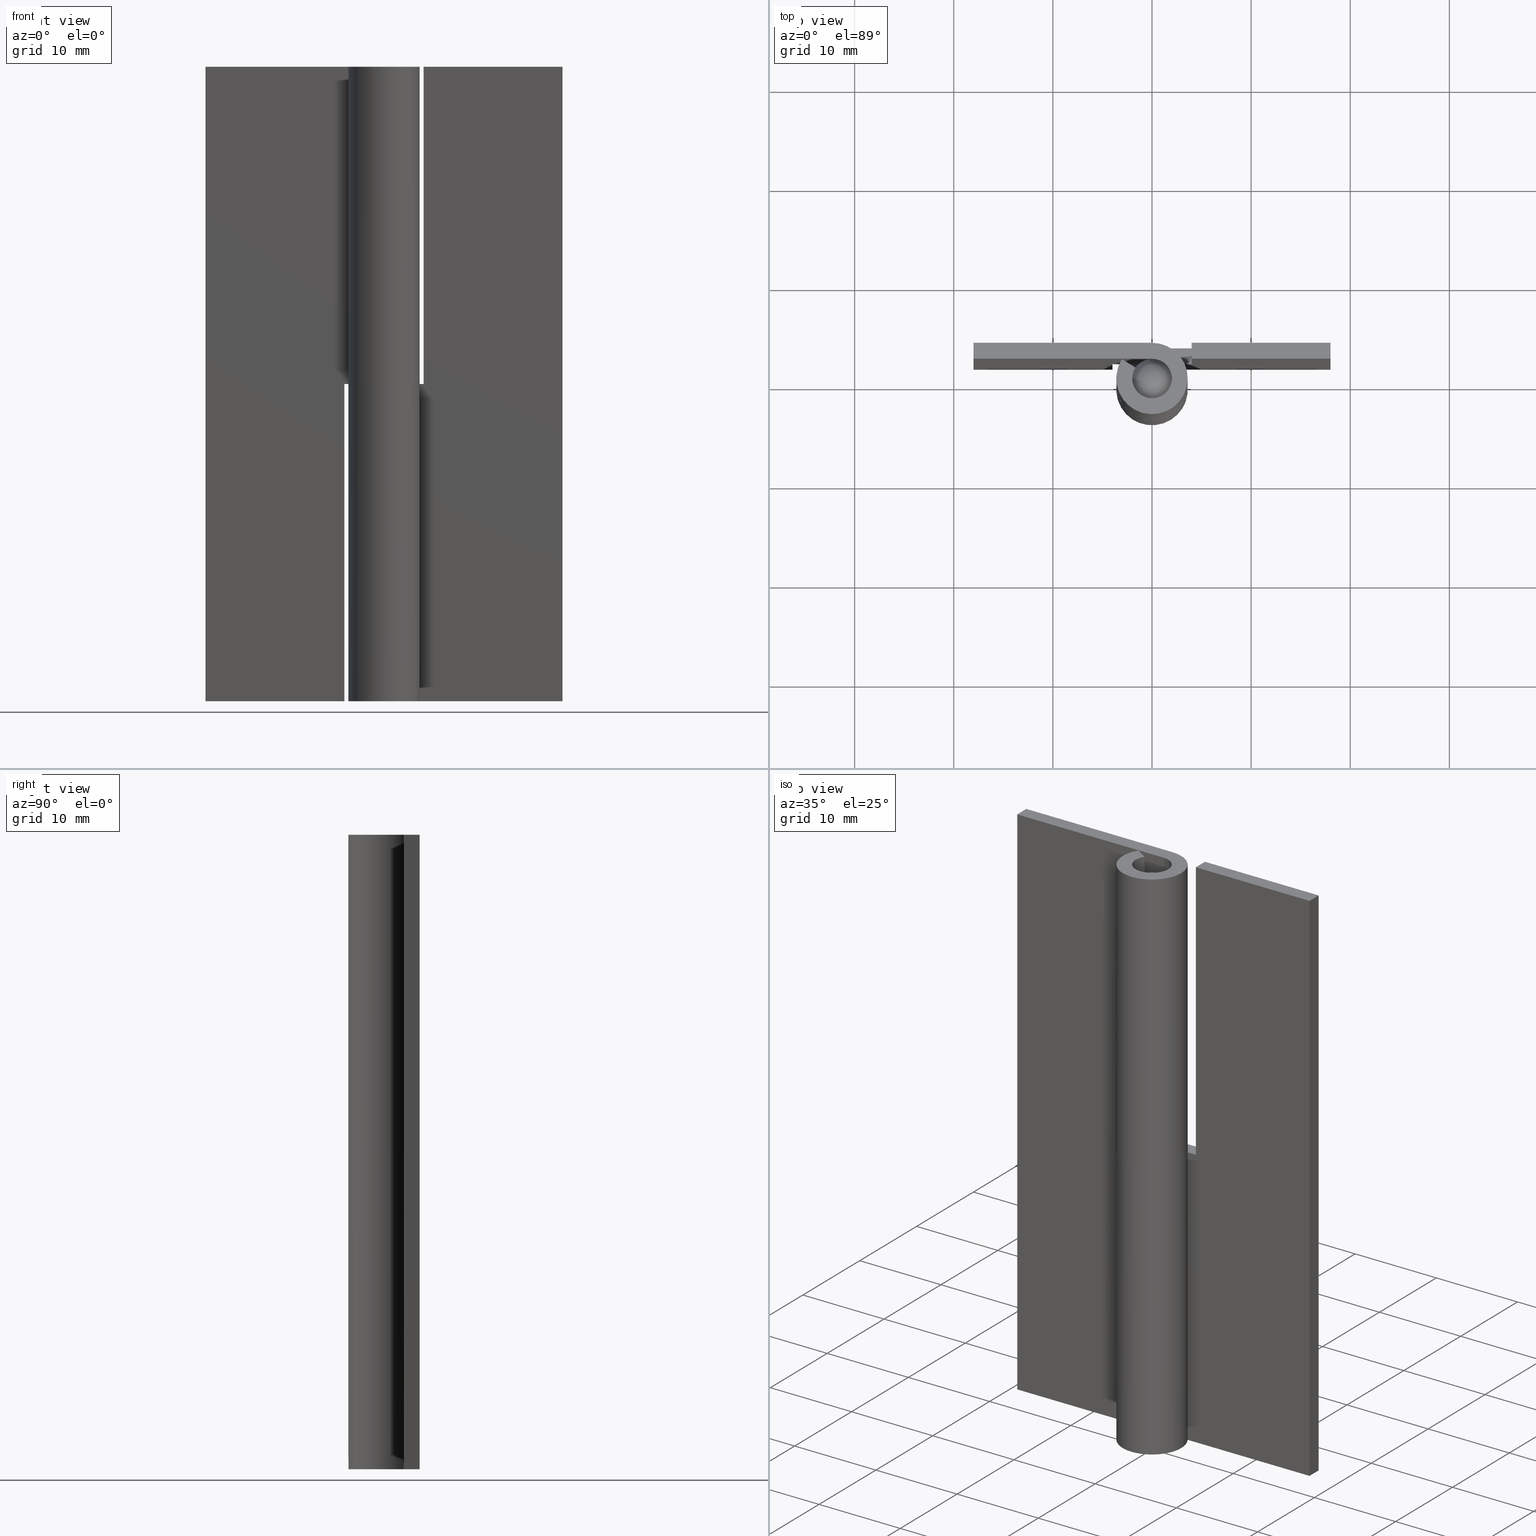
[diagram: canonical four-view strip — front | top / right | iso, engineering-drawing reading convention]
A machine part, canonical four-view strip (front | top / right | iso — engineering-drawing reading convention). The complete STEP part file that produces these views, byte-faithful:
ISO-10303-21;
HEADER;
/****************************************************************
 * Generated by software with PDE/Lib inside                    *
 * PDElib Version 4.4.1-0003, patched  Thursday August 19 11:58 *
 * International Technegroup Inc. (www.iti-oh.com)              *
 ****************************************************************/
FILE_DESCRIPTION((''),'2;1');
FILE_NAME('','2005-04-20T10:10:35',(''),(''),'','CADfix','');
FILE_SCHEMA(('AUTOMOTIVE_DESIGN'));
ENDSEC;
DATA;
#5=APPLICATION_CONTEXT('automotive design');
#6=APPLICATION_PROTOCOL_DEFINITION('Draft International Standard','automotive_design',1998,#5);
#7=PRODUCT_CONTEXT('None',#5,'mechanical');
#8=PRODUCT('shaft','','None',(#7));
#9=PRODUCT_RELATED_PRODUCT_CATEGORY('part','description',(#8));
#10=PRODUCT_DEFINITION_FORMATION('None','None',#8);
#11=PRODUCT_DEFINITION_CONTEXT('part definition',#5,'design');
#12=PRODUCT_DEFINITION('None','None',#10,#11);
#18=(NAMED_UNIT(*)PLANE_ANGLE_UNIT()SI_UNIT($,.RADIAN.));
#19=DIMENSIONAL_EXPONENTS(0.0,0.0,0.0,0.0,0.0,0.0,0.0);
#20=PLANE_ANGLE_MEASURE_WITH_UNIT(PLANE_ANGLE_MEASURE(0.017453292500000),#18);
#24=(CONVERSION_BASED_UNIT('DEGREE',#20)NAMED_UNIT(#19)PLANE_ANGLE_UNIT());
#28=(NAMED_UNIT(*)SI_UNIT($,.STERADIAN.)SOLID_ANGLE_UNIT());
#32=(LENGTH_UNIT()NAMED_UNIT(*)SI_UNIT(.MILLI.,.METRE.));
#34=UNCERTAINTY_MEASURE_WITH_UNIT(LENGTH_MEASURE(0.001000000000000),#32,'DISTANCE_ACCURACY_VALUE','');
#36=(GEOMETRIC_REPRESENTATION_CONTEXT(3)GLOBAL_UNCERTAINTY_ASSIGNED_CONTEXT((#34))GLOBAL_UNIT_ASSIGNED_CONTEXT((#24,#28,#32))REPRESENTATION_CONTEXT('None','None'));
#37=AXIS2_PLACEMENT_3D('',#38,#39,#40);
#38=CARTESIAN_POINT('',(0.0,0.0,0.0));
#39=DIRECTION('',(0.0,0.0,1.0));
#40=DIRECTION('',(1.0,0.0,0.0));
#41=ADVANCED_BREP_SHAPE_REPRESENTATION('',(#37,#274,#1096),#36);
#42=PRODUCT_DEFINITION_SHAPE('','',#12);
#43=SHAPE_DEFINITION_REPRESENTATION(#42,#41);
#44=CARTESIAN_POINT('',(-0.236068450853635,1.986018897426298,63.037498170657102));
#45=CARTESIAN_POINT('',(-0.179229443260722,1.992775075067863,63.037498170657088));
#46=CARTESIAN_POINT('',(-0.122097069522070,1.996269440741135,63.037498170657088));
#47=CARTESIAN_POINT('',(1.874172371219066,2.118366510263206,63.037498170657088));
#48=CARTESIAN_POINT('',(1.996269440741135,0.122097069522070,63.037498170657088));
#49=CARTESIAN_POINT('',(2.118366510263206,-1.874172371219066,63.037498170657088));
#50=CARTESIAN_POINT('',(0.122097069522070,-1.996269440741135,63.037498170657088));
#51=CARTESIAN_POINT('',(-0.236068450853635,1.986018897426298,-1.575937454266431));
#52=CARTESIAN_POINT('',(-0.179229443260722,1.992775075067863,-1.575937454266431));
#53=CARTESIAN_POINT('',(-0.122097069522070,1.996269440741135,-1.575937454266430));
#54=CARTESIAN_POINT('',(1.874172371219066,2.118366510263206,-1.575937454266431));
#55=CARTESIAN_POINT('',(1.996269440741135,0.122097069522070,-1.575937454266430));
#56=CARTESIAN_POINT('',(2.118366510263206,-1.874172371219066,-1.575937454266431));
#57=CARTESIAN_POINT('',(0.122097069522070,-1.996269440741135,-1.575937454266430));
#65=(BOUNDED_SURFACE()B_SPLINE_SURFACE(2,1,((#44,#51),(#45,#52),(#46,#53),(#47,#54),(#48,#55),(#49,#56),(#50,#57)),.UNSPECIFIED.,.F.,.F.,.U.)B_SPLINE_SURFACE_WITH_KNOTS((3,2,2,3),(2,2),(0.0,0.132548329594488,3.446256569456678,6.759964809318868),(0.0,64.613435624923540),.UNSPECIFIED.)GEOMETRIC_REPRESENTATION_ITEM()RATIONAL_B_SPLINE_SURFACE(((0.977505800795127,0.977505800795127),(0.988284271247462,0.988284271247462),(1.0,1.0),(0.707106781186548,0.707106781186548),(1.0,1.0),(0.707106781186548,0.707106781186548),(1.0,1.0)))REPRESENTATION_ITEM('')SURFACE());
#66=CARTESIAN_POINT('',(-0.236068460313633,1.986018975049470,2.725851E-015));
#67=VERTEX_POINT('',#66);
#68=CARTESIAN_POINT('',(2.0,0.0,0.0));
#69=VERTEX_POINT('',#68);
#70=CARTESIAN_POINT('',(-0.236068460313633,1.986018975049470,2.725851E-015));
#71=CARTESIAN_POINT('',(-0.118448239536309,2.0,0.0));
#72=CARTESIAN_POINT('',(0.0,2.0,0.0));
#73=CARTESIAN_POINT('',(2.000000000000000,2.000000000000000,0.0));
#74=CARTESIAN_POINT('',(2.0,0.0,0.0));
#82=(BOUNDED_CURVE()B_SPLINE_CURVE(2,(#70,#71,#72,#73,#74),.UNSPECIFIED.,.F.,.U.)B_SPLINE_CURVE_WITH_KNOTS((3,2,3),(0.229562473476490,0.250000000000000,0.500000000000000),.UNSPECIFIED.)CURVE()GEOMETRIC_REPRESENTATION_ITEM()RATIONAL_B_SPLINE_CURVE((0.956026754111142,0.976055948287776,1.0,0.707106781186548,1.0))REPRESENTATION_ITEM(''));
#83=EDGE_CURVE('',#67,#69,#82,.T.);
#84=ORIENTED_EDGE('',*,*,#83,.F.);
#85=CARTESIAN_POINT('',(-0.236068441853754,1.986018819748432,61.499998215275198));
#86=VERTEX_POINT('',#85);
#87=CARTESIAN_POINT('',(-0.236068441853754,1.986018819748432,61.499998215275198));
#88=CARTESIAN_POINT('',(-0.236068460313633,1.986018975049470,2.725851E-015));
#89=QUASI_UNIFORM_CURVE('',1,(#87,#88),.UNSPECIFIED.,.F.,.U.);
#90=EDGE_CURVE('',#86,#67,#89,.T.);
#91=ORIENTED_EDGE('',*,*,#90,.F.);
#92=CARTESIAN_POINT('',(1.999999687211385,0.0,61.499998215275198));
#93=VERTEX_POINT('',#92);
#94=CARTESIAN_POINT('',(-0.236068441853754,1.986018819748432,61.499998215275198));
#95=CARTESIAN_POINT('',(-0.118448221011683,1.999999687211385,61.499998215275198));
#96=CARTESIAN_POINT('',(0.0,1.999999687211385,61.499998215275198));
#97=CARTESIAN_POINT('',(1.999999687211385,1.999999687211385,61.499998215275198));
#98=CARTESIAN_POINT('',(1.999999687211385,0.0,61.499998215275198));
#106=(BOUNDED_CURVE()B_SPLINE_CURVE(2,(#94,#95,#96,#97,#98),.UNSPECIFIED.,.F.,.U.)B_SPLINE_CURVE_WITH_KNOTS((3,2,3),(0.229562473476490,0.250000000000000,0.500000000000000),.UNSPECIFIED.)CURVE()GEOMETRIC_REPRESENTATION_ITEM()RATIONAL_B_SPLINE_CURVE((0.956026754111141,0.976055948287775,1.0,0.707106781186547,1.0))REPRESENTATION_ITEM(''));
#107=EDGE_CURVE('',#86,#93,#106,.T.);
#108=ORIENTED_EDGE('',*,*,#107,.T.);
#109=CARTESIAN_POINT('',(0.122097064824999,-1.996269362685140,61.499998215275198));
#110=VERTEX_POINT('',#109);
#111=CARTESIAN_POINT('',(1.999999687211385,0.0,61.499998215275198));
#112=CARTESIAN_POINT('',(1.999999687211386,-1.881411839424297,61.499998215275198));
#113=CARTESIAN_POINT('',(0.122097064824999,-1.996269362685140,61.499998215275198));
#121=(BOUNDED_CURVE()B_SPLINE_CURVE(2,(#111,#112,#113),.UNSPECIFIED.,.F.,.U.)B_SPLINE_CURVE_WITH_KNOTS((3,3),(0.500000000000000,0.739332962228700),.UNSPECIFIED.)CURVE()GEOMETRIC_REPRESENTATION_ITEM()RATIONAL_B_SPLINE_CURVE((1.0,0.719603993298711,0.976072041644765))REPRESENTATION_ITEM(''));
#122=EDGE_CURVE('',#93,#110,#121,.T.);
#123=ORIENTED_EDGE('',*,*,#122,.T.);
#124=CARTESIAN_POINT('',(0.122097074372659,-1.996269518787739,2.775558E-015));
#125=VERTEX_POINT('',#124);
#126=CARTESIAN_POINT('',(0.122097064824999,-1.996269362685140,61.499998215275198));
#127=CARTESIAN_POINT('',(0.122097074372659,-1.996269518787739,2.775558E-015));
#128=QUASI_UNIFORM_CURVE('',1,(#126,#127),.UNSPECIFIED.,.F.,.U.);
#129=EDGE_CURVE('',#110,#125,#128,.T.);
#130=ORIENTED_EDGE('',*,*,#129,.T.);
#131=CARTESIAN_POINT('',(2.0,0.0,0.0));
#132=CARTESIAN_POINT('',(2.000000000000000,-1.881412133666420,0.0));
#133=CARTESIAN_POINT('',(0.122097074372659,-1.996269518787739,2.775558E-015));
#141=(BOUNDED_CURVE()B_SPLINE_CURVE(2,(#131,#132,#133),.UNSPECIFIED.,.F.,.U.)B_SPLINE_CURVE_WITH_KNOTS((3,3),(0.500000000000000,0.739332962228698),.UNSPECIFIED.)CURVE()GEOMETRIC_REPRESENTATION_ITEM()RATIONAL_B_SPLINE_CURVE((1.0,0.719603993298713,0.976072041644760))REPRESENTATION_ITEM(''));
#142=EDGE_CURVE('',#69,#125,#141,.T.);
#143=ORIENTED_EDGE('',*,*,#142,.F.);
#144=EDGE_LOOP('',(#84,#91,#108,#123,#130,#143));
#145=FACE_OUTER_BOUND('',#144,.T.);
#146=ADVANCED_FACE('',(#145),#65,.T.);
#147=CARTESIAN_POINT('',(0.122097069522070,-1.996269440741135,63.037498170657088));
#148=CARTESIAN_POINT('',(-1.874172371219066,-2.118366510263206,63.037498170657088));
#149=CARTESIAN_POINT('',(-1.996269440741135,-0.122097069522070,63.037498170657088));
#150=CARTESIAN_POINT('',(-2.111572228346107,1.763086843810621,63.037498170657088));
#151=CARTESIAN_POINT('',(-0.236068450853635,1.986018897426298,63.037498170657102));
#152=CARTESIAN_POINT('',(0.122097069522070,-1.996269440741135,-1.575937454266430));
#153=CARTESIAN_POINT('',(-1.874172371219066,-2.118366510263206,-1.575937454266431));
#154=CARTESIAN_POINT('',(-1.996269440741135,-0.122097069522070,-1.575937454266430));
#155=CARTESIAN_POINT('',(-2.111572228346107,1.763086843810621,-1.575937454266430));
#156=CARTESIAN_POINT('',(-0.236068450853635,1.986018897426298,-1.575937454266431));
#164=(BOUNDED_SURFACE()B_SPLINE_SURFACE(2,1,((#147,#152),(#148,#153),(#149,#154),(#150,#155),(#151,#156)),.UNSPECIFIED.,.F.,.F.,.U.)B_SPLINE_SURFACE_WITH_KNOTS((3,2,3),(2,2),(0.0,3.313708239862190,6.494868150129893),(0.0,64.613435624923540),.UNSPECIFIED.)GEOMETRIC_REPRESENTATION_ITEM()RATIONAL_B_SPLINE_SURFACE(((1.0,1.0),(0.707106781186548,0.707106781186548),(1.0,1.0),(0.718822509939086,0.718822509939086),(0.977505800795127,0.977505800795127)))REPRESENTATION_ITEM('')SURFACE());
#165=CARTESIAN_POINT('',(-2.0,0.0,0.0));
#166=VERTEX_POINT('',#165);
#167=CARTESIAN_POINT('',(-2.0,0.0,0.0));
#168=CARTESIAN_POINT('',(-2.0,1.776349051488299,0.0));
#169=CARTESIAN_POINT('',(-0.236068460313633,1.986018975049470,2.725851E-015));
#177=(BOUNDED_CURVE()B_SPLINE_CURVE(2,(#167,#168,#169),.UNSPECIFIED.,.F.,.U.)B_SPLINE_CURVE_WITH_KNOTS((3,3),(0.0,0.229562473476490),.UNSPECIFIED.)CURVE()GEOMETRIC_REPRESENTATION_ITEM()RATIONAL_B_SPLINE_CURVE((1.0,0.731050832898772,0.956026754111142))REPRESENTATION_ITEM(''));
#178=EDGE_CURVE('',#166,#67,#177,.T.);
#179=ORIENTED_EDGE('',*,*,#178,.F.);
#180=CARTESIAN_POINT('',(0.122097074372659,-1.996269518787740,2.775558E-015));
#181=CARTESIAN_POINT('',(0.061105526674160,-2.000000000000000,0.0));
#182=CARTESIAN_POINT('',(0.0,-2.0,0.0));
#183=CARTESIAN_POINT('',(-2.000000000000000,-2.000000000000000,0.0));
#184=CARTESIAN_POINT('',(-2.0,0.0,0.0));
#192=(BOUNDED_CURVE()B_SPLINE_CURVE(2,(#180,#181,#182,#183,#184),.UNSPECIFIED.,.F.,.U.)B_SPLINE_CURVE_WITH_KNOTS((3,2,3),(0.739332962228698,0.750000000000000,1.0),.UNSPECIFIED.)CURVE()GEOMETRIC_REPRESENTATION_ITEM()RATIONAL_B_SPLINE_CURVE((0.976072041644760,0.987502787887834,1.0,0.707106781186548,1.0))REPRESENTATION_ITEM(''));
#193=EDGE_CURVE('',#125,#166,#192,.T.);
#194=ORIENTED_EDGE('',*,*,#193,.F.);
#195=ORIENTED_EDGE('',*,*,#129,.F.);
#196=CARTESIAN_POINT('',(-1.999999687211385,0.0,61.499998215275198));
#197=VERTEX_POINT('',#196);
#198=CARTESIAN_POINT('',(0.122097064824999,-1.996269362685139,61.499998215275198));
#199=CARTESIAN_POINT('',(0.061105517117588,-1.999999687211385,61.499998215275198));
#200=CARTESIAN_POINT('',(0.0,-1.999999687211385,61.499998215275198));
#201=CARTESIAN_POINT('',(-1.999999687211385,-1.999999687211385,61.499998215275198));
#202=CARTESIAN_POINT('',(-1.999999687211385,0.0,61.499998215275198));
#210=(BOUNDED_CURVE()B_SPLINE_CURVE(2,(#198,#199,#200,#201,#202),.UNSPECIFIED.,.F.,.U.)B_SPLINE_CURVE_WITH_KNOTS((3,2,3),(0.739332962228700,0.750000000000000,1.0),.UNSPECIFIED.)CURVE()GEOMETRIC_REPRESENTATION_ITEM()RATIONAL_B_SPLINE_CURVE((0.976072041644766,0.987502787887838,1.0,0.707106781186547,1.0))REPRESENTATION_ITEM(''));
#211=EDGE_CURVE('',#110,#197,#210,.T.);
#212=ORIENTED_EDGE('',*,*,#211,.T.);
#213=CARTESIAN_POINT('',(-1.999999687211385,0.0,61.499998215275198));
#214=CARTESIAN_POINT('',(-1.999999687211385,1.776348773677413,61.499998215275198));
#215=CARTESIAN_POINT('',(-0.236068441853754,1.986018819748431,61.499998215275191));
#223=(BOUNDED_CURVE()B_SPLINE_CURVE(2,(#213,#214,#215),.UNSPECIFIED.,.F.,.U.)B_SPLINE_CURVE_WITH_KNOTS((3,3),(0.0,0.229562473476490),.UNSPECIFIED.)CURVE()GEOMETRIC_REPRESENTATION_ITEM()RATIONAL_B_SPLINE_CURVE((1.0,0.731050832898773,0.956026754111141))REPRESENTATION_ITEM(''));
#224=EDGE_CURVE('',#197,#86,#223,.T.);
#225=ORIENTED_EDGE('',*,*,#224,.T.);
#226=ORIENTED_EDGE('',*,*,#90,.T.);
#227=EDGE_LOOP('',(#179,#194,#195,#212,#225,#226));
#228=FACE_OUTER_BOUND('',#227,.T.);
#229=ADVANCED_FACE('',(#228),#164,.T.);
#230=CARTESIAN_POINT('',(2.199799992247224,-2.199751314024727,0.0));
#231=CARTESIAN_POINT('',(-2.199800099535584,-2.199751314024727,0.0));
#232=CARTESIAN_POINT('',(2.199799992247224,2.199763616423408,0.0));
#233=CARTESIAN_POINT('',(-2.199800099535584,2.199763616423408,0.0));
#234=B_SPLINE_SURFACE_WITH_KNOTS('',1,1,((#230,#232),(#231,#233)),.UNSPECIFIED.,.F.,.F.,.U.,(2,2),(2,2),(0.0,4.399600091782808),(0.0,4.399514930448135),.UNSPECIFIED.);
#235=ORIENTED_EDGE('',*,*,#178,.T.);
#236=ORIENTED_EDGE('',*,*,#83,.T.);
#237=ORIENTED_EDGE('',*,*,#142,.T.);
#238=ORIENTED_EDGE('',*,*,#193,.T.);
#239=EDGE_LOOP('',(#235,#236,#237,#238));
#240=FACE_OUTER_BOUND('',#239,.T.);
#241=ADVANCED_FACE('',(#240),#234,.T.);
#242=CARTESIAN_POINT('',(-1.461900274785525,-1.461900274785524,60.659815701669132));
#243=CARTESIAN_POINT('',(-1.016368766600801,-2.032737533201604,61.373014109785842));
#244=CARTESIAN_POINT('',(1.016368766600802,-2.032737533201604,61.373014109785842));
#245=CARTESIAN_POINT('',(1.461900274785524,-1.461900274785524,60.659815701669132));
#246=CARTESIAN_POINT('',(-2.032737533201602,-1.016368766600802,61.373014109785899));
#247=CARTESIAN_POINT('',(-1.667480023164929,-1.667480023164936,62.999997999999898));
#248=CARTESIAN_POINT('',(1.667480023164938,-1.667480023164936,62.999997999999891));
#249=CARTESIAN_POINT('',(2.032737533201604,-1.016368766600802,61.373014109785842));
#250=CARTESIAN_POINT('',(-2.032737533201602,1.016368766600801,61.373014109785899));
#251=CARTESIAN_POINT('',(-1.667480023164929,1.667480023164932,62.999997999999913));
#252=CARTESIAN_POINT('',(1.667480023164938,1.667480023164932,62.999997999999898));
#253=CARTESIAN_POINT('',(2.032737533201604,1.016368766600801,61.373014109785842));
#254=CARTESIAN_POINT('',(-1.461900274785525,1.461900274785525,60.659815701669132));
#255=CARTESIAN_POINT('',(-1.016368766600801,2.032737533201602,61.373014109785899));
#256=CARTESIAN_POINT('',(1.016368766600802,2.032737533201602,61.373014109785842));
#257=CARTESIAN_POINT('',(1.461900274785524,1.461900274785525,60.659815701669132));
#265=(BOUNDED_SURFACE()B_SPLINE_SURFACE(2,2,((#242,#246,#250,#254),(#243,#247,#251,#255),(#244,#248,#252,#256),(#245,#249,#253,#257)),.UNSPECIFIED.,.F.,.F.,.U.)B_SPLINE_SURFACE_WITH_KNOTS((3,1,3),(3,1,3),(0.0,2.525886884444863,5.051773768889725),(0.0,2.525886884444871,5.051773768889741),.UNSPECIFIED.)GEOMETRIC_REPRESENTATION_ITEM()RATIONAL_B_SPLINE_SURFACE(((2.281250030422999,1.640625015211500,1.640625015211500,2.281250030422999),(1.640625015211500,1.0,1.0,1.640625015211500),(1.640625015211500,1.0,1.0,1.640625015211500),(2.281250030422999,1.640625015211500,1.640625015211500,2.281250030422999)))REPRESENTATION_ITEM('')SURFACE());
#266=ORIENTED_EDGE('',*,*,#211,.F.);
#267=ORIENTED_EDGE('',*,*,#122,.F.);
#268=ORIENTED_EDGE('',*,*,#107,.F.);
#269=ORIENTED_EDGE('',*,*,#224,.F.);
#270=EDGE_LOOP('',(#266,#267,#268,#269));
#271=FACE_OUTER_BOUND('',#270,.T.);
#272=ADVANCED_FACE('',(#271),#265,.T.);
#273=CLOSED_SHELL('',(#146,#229,#241,#272));
#274=MANIFOLD_SOLID_BREP('shaft',#273);
#275=APPLICATION_CONTEXT('automotive design');
#276=APPLICATION_PROTOCOL_DEFINITION('Draft International Standard','automotive_design',1998,#275);
#277=PRODUCT_CONTEXT('None',#275,'mechanical');
#278=PRODUCT('hinge piece_B','','None',(#277));
#279=PRODUCT_RELATED_PRODUCT_CATEGORY('part','description',(#278));
#280=PRODUCT_DEFINITION_FORMATION('None','None',#278);
#281=PRODUCT_DEFINITION_CONTEXT('part definition',#275,'design');
#282=PRODUCT_DEFINITION('None','None',#280,#281);
#288=(NAMED_UNIT(*)PLANE_ANGLE_UNIT()SI_UNIT($,.RADIAN.));
#289=DIMENSIONAL_EXPONENTS(0.0,0.0,0.0,0.0,0.0,0.0,0.0);
#290=PLANE_ANGLE_MEASURE_WITH_UNIT(PLANE_ANGLE_MEASURE(0.017453292500000),#288);
#294=(CONVERSION_BASED_UNIT('DEGREE',#290)NAMED_UNIT(#289)PLANE_ANGLE_UNIT());
#298=(NAMED_UNIT(*)SI_UNIT($,.STERADIAN.)SOLID_ANGLE_UNIT());
#302=(LENGTH_UNIT()NAMED_UNIT(*)SI_UNIT(.MILLI.,.METRE.));
#304=UNCERTAINTY_MEASURE_WITH_UNIT(LENGTH_MEASURE(0.001000000000000),#302,'DISTANCE_ACCURACY_VALUE','');
#306=(GEOMETRIC_REPRESENTATION_CONTEXT(3)GLOBAL_UNCERTAINTY_ASSIGNED_CONTEXT((#304))GLOBAL_UNIT_ASSIGNED_CONTEXT((#294,#298,#302))REPRESENTATION_CONTEXT('None','None'));
#307=AXIS2_PLACEMENT_3D('',#308,#309,#310);
#308=CARTESIAN_POINT('',(0.0,0.0,0.0));
#309=DIRECTION('',(0.0,0.0,1.0));
#310=DIRECTION('',(1.0,0.0,0.0));
#311=ADVANCED_BREP_SHAPE_REPRESENTATION('',(#307,#669,#1112),#306);
#312=PRODUCT_DEFINITION_SHAPE('','',#282);
#313=SHAPE_DEFINITION_REPRESENTATION(#312,#311);
#314=CARTESIAN_POINT('',(-4.000000000000045,1.920080103001107,33.598408037184612));
#315=CARTESIAN_POINT('',(-4.000000000000045,1.920080103001107,-1.598401181594057));
#316=CARTESIAN_POINT('',(-4.000000000000045,3.679917939914185,33.598408037184612));
#317=CARTESIAN_POINT('',(-4.000000000000045,3.679917939914185,-1.598401181594057));
#318=B_SPLINE_SURFACE_WITH_KNOTS('',1,1,((#314,#316),(#315,#317)),.UNSPECIFIED.,.F.,.F.,.U.,(2,2),(2,2),(0.0,35.196809218778661),(0.041708334948495,0.958291687403247),.UNSPECIFIED.);
#319=CARTESIAN_POINT('',(-4.000000000000045,3.599998000000000,0.0));
#320=VERTEX_POINT('',#319);
#321=CARTESIAN_POINT('',(-4.0,2.0,0.0));
#322=VERTEX_POINT('',#321);
#323=CARTESIAN_POINT('',(-4.000000000000045,3.599998000000000,0.0));
#324=CARTESIAN_POINT('',(-4.0,2.0,0.0));
#325=QUASI_UNIFORM_CURVE('',1,(#323,#324),.UNSPECIFIED.,.F.,.U.);
#326=EDGE_CURVE('',#320,#322,#325,.T.);
#327=ORIENTED_EDGE('',*,*,#326,.F.);
#328=CARTESIAN_POINT('',(-4.000000000000045,3.599998000000000,32.000008000000001));
#329=VERTEX_POINT('',#328);
#330=CARTESIAN_POINT('',(-4.000000000000045,3.599998000000000,0.0));
#331=CARTESIAN_POINT('',(-4.000000000000045,3.599998000000000,32.000008000000001));
#332=QUASI_UNIFORM_CURVE('',1,(#330,#331),.UNSPECIFIED.,.F.,.U.);
#333=EDGE_CURVE('',#320,#329,#332,.T.);
#334=ORIENTED_EDGE('',*,*,#333,.T.);
#335=CARTESIAN_POINT('',(-4.000000000000045,2.0,32.000008000000001));
#336=VERTEX_POINT('',#335);
#337=CARTESIAN_POINT('',(-4.000000000000045,3.599998000000000,32.000008000000001));
#338=CARTESIAN_POINT('',(-4.000000000000045,2.0,32.000008000000001));
#339=QUASI_UNIFORM_CURVE('',1,(#337,#338),.UNSPECIFIED.,.F.,.U.);
#340=EDGE_CURVE('',#329,#336,#339,.T.);
#341=ORIENTED_EDGE('',*,*,#340,.T.);
#342=CARTESIAN_POINT('',(-4.0,2.0,0.0));
#343=CARTESIAN_POINT('',(-4.000000000000045,2.0,32.000008000000001));
#344=QUASI_UNIFORM_CURVE('',1,(#342,#343),.UNSPECIFIED.,.F.,.U.);
#345=EDGE_CURVE('',#322,#336,#344,.T.);
#346=ORIENTED_EDGE('',*,*,#345,.F.);
#347=EDGE_LOOP('',(#327,#334,#341,#346));
#348=FACE_OUTER_BOUND('',#347,.T.);
#349=ADVANCED_FACE('',(#348),#318,.T.);
#350=CARTESIAN_POINT('',(3.979214854317963,-3.958018707840474,32.000008000000001));
#351=CARTESIAN_POINT('',(-4.379600915532099,-3.958018707840474,32.000008000000001));
#352=CARTESIAN_POINT('',(3.979214854317963,3.959560953784878,32.000008000000001));
#353=CARTESIAN_POINT('',(-4.379600915532099,3.959560953784878,32.000008000000001));
#354=B_SPLINE_SURFACE_WITH_KNOTS('',1,1,((#350,#352),(#351,#353)),.UNSPECIFIED.,.F.,.F.,.U.,(2,2),(2,2),(0.0,8.358815769850063),(0.0,7.917579661625352),.UNSPECIFIED.);
#355=CARTESIAN_POINT('',(0.0,3.599998000000000,32.000008000000001));
#356=VERTEX_POINT('',#355);
#357=CARTESIAN_POINT('',(-3.026136150274805,1.950000000000000,32.000008000000051));
#358=VERTEX_POINT('',#357);
#359=CARTESIAN_POINT('',(0.0,3.599998000000000,32.000008000000001));
#360=CARTESIAN_POINT('',(2.797445801786443,3.599996574839753,32.000007999999973));
#361=CARTESIAN_POINT('',(3.488445646206988,0.889236523647995,32.000007999999973));
#362=CARTESIAN_POINT('',(4.179445490627532,-1.821523527543762,32.000007999999987));
#363=CARTESIAN_POINT('',(1.723368793961408,-3.160697125855821,32.000008000000022));
#364=CARTESIAN_POINT('',(-0.732707902704715,-4.499870724167879,32.000008000000072));
#365=CARTESIAN_POINT('',(-2.637063597806922,-2.450691853562210,32.000008000000079));
#366=CARTESIAN_POINT('',(-4.541419292909128,-0.401512982956539,32.000008000000086));
#367=CARTESIAN_POINT('',(-3.026136150274805,1.950000000000000,32.000008000000051));
#375=(BOUNDED_CURVE()B_SPLINE_CURVE(2,(#359,#360,#361,#362,#363,#364,#365,#366,#367),.UNSPECIFIED.,.F.,.U.)B_SPLINE_CURVE_WITH_KNOTS((3,2,2,2,3),(0.0,0.250000000000000,0.500000000000000,0.750000000000000,1.0),.UNSPECIFIED.)CURVE()GEOMETRIC_REPRESENTATION_ITEM()RATIONAL_B_SPLINE_CURVE((1.0,0.789623639943024,1.0,0.789623639943024,1.0,0.789623639943024,1.0,0.789623639943024,1.0))REPRESENTATION_ITEM(''));
#376=EDGE_CURVE('',#356,#358,#375,.T.);
#377=ORIENTED_EDGE('',*,*,#376,.T.);
#378=CARTESIAN_POINT('',(-1.681186750152670,1.083333333333330,32.000008000000051));
#379=VERTEX_POINT('',#378);
#380=CARTESIAN_POINT('',(-1.681186750152670,1.083333333333330,32.000008000000051));
#381=CARTESIAN_POINT('',(-3.026136150274805,1.950000000000000,32.000008000000051));
#382=QUASI_UNIFORM_CURVE('',1,(#380,#381),.UNSPECIFIED.,.F.,.U.);
#383=EDGE_CURVE('',#379,#358,#382,.T.);
#384=ORIENTED_EDGE('',*,*,#383,.F.);
#385=CARTESIAN_POINT('',(0.0,2.0,32.000008000000051));
#386=VERTEX_POINT('',#385);
#387=CARTESIAN_POINT('',(0.0,2.0,32.000008000000051));
#388=CARTESIAN_POINT('',(1.554136556548023,2.0,32.000008000000051));
#389=CARTESIAN_POINT('',(1.938025359003881,0.494021971027482,32.000008000000051));
#390=CARTESIAN_POINT('',(2.321914161459741,-1.011956057945037,32.000008000000051));
#391=CARTESIAN_POINT('',(0.957427107756340,-1.755942292142122,32.000008000000051));
#392=CARTESIAN_POINT('',(-0.407059945947059,-2.499928526339208,32.000008000000051));
#393=CARTESIAN_POINT('',(-1.465035332114952,-1.361496043202048,32.000008000000051));
#394=CARTESIAN_POINT('',(-2.523010718282847,-0.223063560064887,32.000008000000051));
#395=CARTESIAN_POINT('',(-1.681186750152670,1.083333333333330,32.000008000000051));
#403=(BOUNDED_CURVE()B_SPLINE_CURVE(2,(#387,#388,#389,#390,#391,#392,#393,#394,#395),.UNSPECIFIED.,.F.,.U.)B_SPLINE_CURVE_WITH_KNOTS((3,2,2,2,3),(0.0,0.250000000000000,0.500000000000000,0.750000000000000,1.0),.UNSPECIFIED.)CURVE()GEOMETRIC_REPRESENTATION_ITEM()RATIONAL_B_SPLINE_CURVE((1.0,0.789623639943024,1.0,0.789623639943024,1.0,0.789623639943024,1.0,0.789623639943024,1.0))REPRESENTATION_ITEM(''));
#404=EDGE_CURVE('',#386,#379,#403,.T.);
#405=ORIENTED_EDGE('',*,*,#404,.F.);
#406=CARTESIAN_POINT('',(-4.000000000000045,2.0,32.000008000000001));
#407=CARTESIAN_POINT('',(0.0,2.0,32.000008000000051));
#408=QUASI_UNIFORM_CURVE('',1,(#406,#407),.UNSPECIFIED.,.F.,.U.);
#409=EDGE_CURVE('',#336,#386,#408,.T.);
#410=ORIENTED_EDGE('',*,*,#409,.F.);
#411=ORIENTED_EDGE('',*,*,#340,.F.);
#412=CARTESIAN_POINT('',(-0.003794732665983,3.599998000000000,32.000008000000001));
#413=VERTEX_POINT('',#412);
#414=CARTESIAN_POINT('',(-4.000000000000045,3.599998000000000,32.000008000000001));
#415=CARTESIAN_POINT('',(-0.003794732665983,3.599998000000000,32.000008000000001));
#416=QUASI_UNIFORM_CURVE('',1,(#414,#415),.UNSPECIFIED.,.F.,.U.);
#417=EDGE_CURVE('',#329,#413,#416,.T.);
#418=ORIENTED_EDGE('',*,*,#417,.T.);
#419=CARTESIAN_POINT('',(-0.003794732665983,3.599998000000000,32.000008000000001));
#420=CARTESIAN_POINT('',(0.0,3.599998000000000,32.000008000000001));
#421=QUASI_UNIFORM_CURVE('',1,(#419,#420),.UNSPECIFIED.,.F.,.U.);
#422=EDGE_CURVE('',#413,#356,#421,.T.);
#423=ORIENTED_EDGE('',*,*,#422,.T.);
#424=EDGE_LOOP('',(#377,#384,#405,#410,#411,#418,#423));
#425=FACE_OUTER_BOUND('',#424,.T.);
#426=ADVANCED_FACE('',(#425),#354,.T.);
#427=CARTESIAN_POINT('',(-19.078902570801009,-3.958064993160935,64.000007999999994));
#428=CARTESIAN_POINT('',(4.678555055360605,-3.958064993160935,64.000007999999994));
#429=CARTESIAN_POINT('',(-19.078902570801009,3.959563155749652,64.000007999999994));
#430=CARTESIAN_POINT('',(4.678555055360605,3.959563155749652,64.000007999999994));
#431=B_SPLINE_SURFACE_WITH_KNOTS('',1,1,((#427,#429),(#428,#430)),.UNSPECIFIED.,.F.,.F.,.U.,(2,2),(2,2),(0.0,23.757457626161610),(0.0,7.917628148910588),.UNSPECIFIED.);
#432=CARTESIAN_POINT('',(-1.681186750152670,1.083333333333330,64.000008000000093));
#433=VERTEX_POINT('',#432);
#434=CARTESIAN_POINT('',(-3.026136150274805,1.950000000000000,64.000008000000093));
#435=VERTEX_POINT('',#434);
#436=CARTESIAN_POINT('',(-1.681186750152670,1.083333333333330,64.000008000000093));
#437=CARTESIAN_POINT('',(-3.026136150274805,1.950000000000000,64.000008000000093));
#438=QUASI_UNIFORM_CURVE('',1,(#436,#437),.UNSPECIFIED.,.F.,.U.);
#439=EDGE_CURVE('',#433,#435,#438,.T.);
#440=ORIENTED_EDGE('',*,*,#439,.T.);
#441=CARTESIAN_POINT('',(-0.003794732665983,3.599998000000000,64.000008000000093));
#442=VERTEX_POINT('',#441);
#443=CARTESIAN_POINT('',(-0.003794732665984,3.599997999999999,64.000008000000093));
#444=CARTESIAN_POINT('',(2.794410358292486,3.602947568378865,64.000008000000093));
#445=CARTESIAN_POINT('',(3.487741550519032,0.891997128237027,64.000008000000093));
#446=CARTESIAN_POINT('',(4.181072742745578,-1.818953311904812,64.000008000000093));
#447=CARTESIAN_POINT('',(1.725034387729875,-3.159787391763790,64.000008000000093));
#448=CARTESIAN_POINT('',(-0.731003967285830,-4.500621471622770,64.000008000000093));
#449=CARTESIAN_POINT('',(-2.636417691941365,-2.451387719969765,64.000008000000093));
#450=CARTESIAN_POINT('',(-4.541831416596898,-0.402153968316764,64.000008000000093));
#451=CARTESIAN_POINT('',(-3.026136150274803,1.949999999999999,64.000008000000093));
#459=(BOUNDED_CURVE()B_SPLINE_CURVE(2,(#443,#444,#445,#446,#447,#448,#449,#450,#451),.UNSPECIFIED.,.F.,.U.)B_SPLINE_CURVE_WITH_KNOTS((3,2,2,2,3),(0.0,0.250000000000000,0.500000000000000,0.750000000000000,1.0),.UNSPECIFIED.)CURVE()GEOMETRIC_REPRESENTATION_ITEM()RATIONAL_B_SPLINE_CURVE((1.0,0.789542785308575,1.0,0.789542785308575,1.0,0.789542785308575,1.0,0.789542785308575,1.0))REPRESENTATION_ITEM(''));
#460=EDGE_CURVE('',#442,#435,#459,.T.);
#461=ORIENTED_EDGE('',*,*,#460,.F.);
#462=CARTESIAN_POINT('',(-18.0,3.599998000000000,64.000008000000093));
#463=VERTEX_POINT('',#462);
#464=CARTESIAN_POINT('',(-0.003794732665983,3.599998000000000,64.000008000000093));
#465=CARTESIAN_POINT('',(-18.0,3.599998000000000,64.000008000000093));
#466=QUASI_UNIFORM_CURVE('',1,(#464,#465),.UNSPECIFIED.,.F.,.U.);
#467=EDGE_CURVE('',#442,#463,#466,.T.);
#468=ORIENTED_EDGE('',*,*,#467,.T.);
#469=CARTESIAN_POINT('',(-18.0,2.0,64.000008000000093));
#470=VERTEX_POINT('',#469);
#471=CARTESIAN_POINT('',(-18.0,3.599998000000000,64.000008000000093));
#472=CARTESIAN_POINT('',(-18.0,2.0,64.000008000000093));
#473=QUASI_UNIFORM_CURVE('',1,(#471,#472),.UNSPECIFIED.,.F.,.U.);
#474=EDGE_CURVE('',#463,#470,#473,.T.);
#475=ORIENTED_EDGE('',*,*,#474,.T.);
#476=CARTESIAN_POINT('',(0.0,2.0,64.000008000000093));
#477=VERTEX_POINT('',#476);
#478=CARTESIAN_POINT('',(-18.0,2.0,64.000008000000093));
#479=CARTESIAN_POINT('',(0.0,2.0,64.000008000000093));
#480=QUASI_UNIFORM_CURVE('',1,(#478,#479),.UNSPECIFIED.,.F.,.U.);
#481=EDGE_CURVE('',#470,#477,#480,.T.);
#482=ORIENTED_EDGE('',*,*,#481,.T.);
#483=CARTESIAN_POINT('',(0.0,2.0,64.000008000000093));
#484=CARTESIAN_POINT('',(1.554136556548023,2.000000000000000,64.000008000000079));
#485=CARTESIAN_POINT('',(1.938025359003881,0.494021971027481,64.000008000000093));
#486=CARTESIAN_POINT('',(2.321914161459739,-1.011956057945037,64.000008000000079));
#487=CARTESIAN_POINT('',(0.957427107756340,-1.755942292142122,64.000008000000093));
#488=CARTESIAN_POINT('',(-0.407059945947058,-2.499928526339207,64.000008000000079));
#489=CARTESIAN_POINT('',(-1.465035332114952,-1.361496043202048,64.000008000000093));
#490=CARTESIAN_POINT('',(-2.523010718282846,-0.223063560064887,64.000008000000079));
#491=CARTESIAN_POINT('',(-1.681186750152670,1.083333333333330,64.000008000000093));
#499=(BOUNDED_CURVE()B_SPLINE_CURVE(2,(#483,#484,#485,#486,#487,#488,#489,#490,#491),.UNSPECIFIED.,.F.,.U.)B_SPLINE_CURVE_WITH_KNOTS((3,2,2,2,3),(0.0,0.250000000000000,0.500000000000000,0.750000000000000,1.0),.UNSPECIFIED.)CURVE()GEOMETRIC_REPRESENTATION_ITEM()RATIONAL_B_SPLINE_CURVE((1.0,0.789623639943024,1.0,0.789623639943024,1.0,0.789623639943024,1.0,0.789623639943024,1.0))REPRESENTATION_ITEM(''));
#500=EDGE_CURVE('',#477,#433,#499,.T.);
#501=ORIENTED_EDGE('',*,*,#500,.T.);
#502=EDGE_LOOP('',(#440,#461,#468,#475,#482,#501));
#503=FACE_OUTER_BOUND('',#502,.T.);
#504=ADVANCED_FACE('',(#503),#431,.T.);
#505=CARTESIAN_POINT('',(-18.0,1.920080103001107,-3.196800275555570));
#506=CARTESIAN_POINT('',(-18.0,1.920080103001107,67.196809992169648));
#507=CARTESIAN_POINT('',(-18.0,3.679917939914185,-3.196800275555570));
#508=CARTESIAN_POINT('',(-18.0,3.679917939914185,67.196809992169648));
#509=B_SPLINE_SURFACE_WITH_KNOTS('',1,1,((#505,#507),(#506,#508)),.UNSPECIFIED.,.F.,.F.,.U.,(2,2),(2,2),(0.0,70.393610267725222),(0.041708334948495,0.958291687403247),.UNSPECIFIED.);
#510=ORIENTED_EDGE('',*,*,#474,.F.);
#511=CARTESIAN_POINT('',(-18.0,3.599998000000000,0.0));
#512=VERTEX_POINT('',#511);
#513=CARTESIAN_POINT('',(-18.0,3.599998000000000,0.0));
#514=CARTESIAN_POINT('',(-18.0,3.599998000000000,64.000008000000093));
#515=QUASI_UNIFORM_CURVE('',1,(#513,#514),.UNSPECIFIED.,.F.,.U.);
#516=EDGE_CURVE('',#512,#463,#515,.T.);
#517=ORIENTED_EDGE('',*,*,#516,.F.);
#518=CARTESIAN_POINT('',(-18.0,2.0,0.0));
#519=VERTEX_POINT('',#518);
#520=CARTESIAN_POINT('',(-18.0,3.599998000000000,0.0));
#521=CARTESIAN_POINT('',(-18.0,2.0,0.0));
#522=QUASI_UNIFORM_CURVE('',1,(#520,#521),.UNSPECIFIED.,.F.,.U.);
#523=EDGE_CURVE('',#512,#519,#522,.T.);
#524=ORIENTED_EDGE('',*,*,#523,.T.);
#525=CARTESIAN_POINT('',(-18.0,2.0,0.0));
#526=CARTESIAN_POINT('',(-18.0,2.0,64.000008000000093));
#527=QUASI_UNIFORM_CURVE('',1,(#525,#526),.UNSPECIFIED.,.F.,.U.);
#528=EDGE_CURVE('',#519,#470,#527,.T.);
#529=ORIENTED_EDGE('',*,*,#528,.T.);
#530=EDGE_LOOP('',(#510,#517,#524,#529));
#531=FACE_OUTER_BOUND('',#530,.T.);
#532=ADVANCED_FACE('',(#531),#509,.T.);
#533=CARTESIAN_POINT('',(-18.699299972865280,1.920080103001107,0.0));
#534=CARTESIAN_POINT('',(-3.300699651625454,1.920080103001107,0.0));
#535=CARTESIAN_POINT('',(-18.699299972865280,3.679917939914185,0.0));
#536=CARTESIAN_POINT('',(-3.300699651625454,3.679917939914185,0.0));
#537=B_SPLINE_SURFACE_WITH_KNOTS('',1,1,((#533,#535),(#534,#536)),.UNSPECIFIED.,.F.,.F.,.U.,(2,2),(2,2),(0.0,15.398600321239829),(0.041708334948495,0.958291687403247),.UNSPECIFIED.);
#538=CARTESIAN_POINT('',(-4.000000000000045,3.599998000000000,0.0));
#539=CARTESIAN_POINT('',(-18.0,3.599998000000000,0.0));
#540=QUASI_UNIFORM_CURVE('',1,(#538,#539),.UNSPECIFIED.,.F.,.U.);
#541=EDGE_CURVE('',#320,#512,#540,.T.);
#542=ORIENTED_EDGE('',*,*,#541,.F.);
#543=ORIENTED_EDGE('',*,*,#326,.T.);
#544=CARTESIAN_POINT('',(-18.0,2.0,0.0));
#545=CARTESIAN_POINT('',(-4.0,2.0,0.0));
#546=QUASI_UNIFORM_CURVE('',1,(#544,#545),.UNSPECIFIED.,.F.,.U.);
#547=EDGE_CURVE('',#519,#322,#546,.T.);
#548=ORIENTED_EDGE('',*,*,#547,.F.);
#549=ORIENTED_EDGE('',*,*,#523,.F.);
#550=EDGE_LOOP('',(#542,#543,#548,#549));
#551=FACE_OUTER_BOUND('',#550,.T.);
#552=ADVANCED_FACE('',(#551),#537,.F.);
#553=CARTESIAN_POINT('',(-0.059431289714682,1.999116785433720,31.200008000000039));
#554=CARTESIAN_POINT('',(-0.059431289714682,1.999116785433720,64.820008000000115));
#555=CARTESIAN_POINT('',(2.453802955236499,2.073832156552045,31.200008000000043));
#556=CARTESIAN_POINT('',(2.453802955236499,2.073832156552045,64.820008000000115));
#557=CARTESIAN_POINT('',(1.961248683018638,-0.391795359030269,31.200008000000039));
#558=CARTESIAN_POINT('',(1.961248683018638,-0.391795359030269,64.820008000000115));
#559=CARTESIAN_POINT('',(1.468694410800777,-2.857422874612584,31.200008000000043));
#560=CARTESIAN_POINT('',(1.468694410800777,-2.857422874612584,64.820008000000115));
#561=CARTESIAN_POINT('',(-0.822938628436438,-1.822847227231935,31.200008000000039));
#562=CARTESIAN_POINT('',(-0.822938628436438,-1.822847227231935,64.820008000000115));
#563=CARTESIAN_POINT('',(-3.114571667673652,-0.788271579851286,31.200008000000043));
#564=CARTESIAN_POINT('',(-3.114571667673652,-0.788271579851286,64.820008000000115));
#565=CARTESIAN_POINT('',(-1.591006858764495,1.211898170377500,31.200008000000039));
#566=CARTESIAN_POINT('',(-1.591006858764495,1.211898170377500,64.820008000000115));
#574=(BOUNDED_SURFACE()B_SPLINE_SURFACE(1,2,((#553,#555,#557,#559,#561,#563,#565),(#554,#556,#558,#560,#562,#564,#566)),.UNSPECIFIED.,.F.,.F.,.U.)B_SPLINE_SURFACE_WITH_KNOTS((2,2),(3,2,2,3),(0.0,33.620000000000083),(0.0,3.858741926540565,7.717483853081129,11.576225779621691),.UNSPECIFIED.)GEOMETRIC_REPRESENTATION_ITEM()RATIONAL_B_SPLINE_SURFACE(((1.0,0.622514636637620,1.0,0.622514636637620,1.0,0.622514636637620,1.0),(1.0,0.622514636637620,1.0,0.622514636637620,1.0,0.622514636637620,1.0)))REPRESENTATION_ITEM('')SURFACE());
#575=CARTESIAN_POINT('',(0.0,2.0,32.000008000000051));
#576=CARTESIAN_POINT('',(0.0,2.0,64.000008000000093));
#577=QUASI_UNIFORM_CURVE('',1,(#575,#576),.UNSPECIFIED.,.F.,.U.);
#578=EDGE_CURVE('',#386,#477,#577,.T.);
#579=ORIENTED_EDGE('',*,*,#578,.F.);
#580=ORIENTED_EDGE('',*,*,#404,.T.);
#581=CARTESIAN_POINT('',(-1.681186750152670,1.083333333333330,32.000008000000051));
#582=CARTESIAN_POINT('',(-1.681186750152670,1.083333333333330,64.000008000000093));
#583=QUASI_UNIFORM_CURVE('',1,(#581,#582),.UNSPECIFIED.,.F.,.U.);
#584=EDGE_CURVE('',#379,#433,#583,.T.);
#585=ORIENTED_EDGE('',*,*,#584,.T.);
#586=ORIENTED_EDGE('',*,*,#500,.F.);
#587=EDGE_LOOP('',(#579,#580,#585,#586));
#588=FACE_OUTER_BOUND('',#587,.T.);
#589=ADVANCED_FACE('',(#588),#574,.F.);
#590=CARTESIAN_POINT('',(-18.899099965112509,2.0,67.196808275555668));
#591=CARTESIAN_POINT('',(-18.899099965112509,2.0,-3.196801992169553));
#592=CARTESIAN_POINT('',(0.899100447910129,2.0,67.196808275555668));
#593=CARTESIAN_POINT('',(0.899100447910129,2.0,-3.196801992169553));
#594=B_SPLINE_SURFACE_WITH_KNOTS('',1,1,((#590,#592),(#591,#593)),.UNSPECIFIED.,.F.,.F.,.U.,(2,2),(2,2),(0.0,70.393610267725222),(0.0,19.798200413022631),.UNSPECIFIED.);
#595=ORIENTED_EDGE('',*,*,#547,.T.);
#596=ORIENTED_EDGE('',*,*,#345,.T.);
#597=ORIENTED_EDGE('',*,*,#409,.T.);
#598=ORIENTED_EDGE('',*,*,#578,.T.);
#599=ORIENTED_EDGE('',*,*,#481,.F.);
#600=ORIENTED_EDGE('',*,*,#528,.F.);
#601=EDGE_LOOP('',(#595,#596,#597,#598,#599,#600));
#602=FACE_OUTER_BOUND('',#601,.T.);
#603=ADVANCED_FACE('',(#602),#594,.T.);
#604=CARTESIAN_POINT('',(-18.898910418223199,3.599998000000000,-3.196800275555570));
#605=CARTESIAN_POINT('',(-18.898910418223199,3.599998000000000,67.196809992169648));
#606=CARTESIAN_POINT('',(0.895116168253053,3.599998000000000,-3.196800275555570));
#607=CARTESIAN_POINT('',(0.895116168253053,3.599998000000000,67.196809992169648));
#608=B_SPLINE_SURFACE_WITH_KNOTS('',1,1,((#604,#606),(#605,#607)),.UNSPECIFIED.,.F.,.F.,.U.,(2,2),(2,2),(0.0,70.393610267725222),(0.0,19.794026586476249),.UNSPECIFIED.);
#609=ORIENTED_EDGE('',*,*,#417,.F.);
#610=ORIENTED_EDGE('',*,*,#333,.F.);
#611=ORIENTED_EDGE('',*,*,#541,.T.);
#612=ORIENTED_EDGE('',*,*,#516,.T.);
#613=ORIENTED_EDGE('',*,*,#467,.F.);
#614=CARTESIAN_POINT('',(-0.003794732665983,3.599998000000000,32.000008000000001));
#615=CARTESIAN_POINT('',(-0.003794732665983,3.599998000000000,64.000008000000093));
#616=QUASI_UNIFORM_CURVE('',1,(#614,#615),.UNSPECIFIED.,.F.,.U.);
#617=EDGE_CURVE('',#413,#442,#616,.T.);
#618=ORIENTED_EDGE('',*,*,#617,.F.);
#619=EDGE_LOOP('',(#609,#610,#611,#612,#613,#618));
#620=FACE_OUTER_BOUND('',#619,.T.);
#621=ADVANCED_FACE('',(#620),#608,.T.);
#622=CARTESIAN_POINT('',(-0.106976321486422,3.598410213780694,31.200007999999968));
#623=CARTESIAN_POINT('',(-0.106976321486422,3.598410213780694,64.820008000000115));
#624=CARTESIAN_POINT('',(4.416845319425701,3.732897881793672,31.200007999999961));
#625=CARTESIAN_POINT('',(4.416845319425701,3.732897881793672,64.820008000000115));
#626=CARTESIAN_POINT('',(3.530247629433546,-0.705231646254490,31.200007999999968));
#627=CARTESIAN_POINT('',(3.530247629433546,-0.705231646254490,64.820008000000115));
#628=CARTESIAN_POINT('',(2.643649939441389,-5.143361174302651,31.200007999999961));
#629=CARTESIAN_POINT('',(2.643649939441389,-5.143361174302651,64.820008000000115));
#630=CARTESIAN_POINT('',(-1.481289531185593,-3.281125009017480,31.200007999999968));
#631=CARTESIAN_POINT('',(-1.481289531185593,-3.281125009017480,64.820008000000115));
#632=CARTESIAN_POINT('',(-5.606229001812576,-1.418888843732306,31.200007999999961));
#633=CARTESIAN_POINT('',(-5.606229001812576,-1.418888843732306,64.820008000000115));
#634=CARTESIAN_POINT('',(-2.863812345776088,2.181416706679504,31.200007999999968));
#635=CARTESIAN_POINT('',(-2.863812345776088,2.181416706679504,64.820008000000115));
#643=(BOUNDED_SURFACE()B_SPLINE_SURFACE(1,2,((#622,#624,#626,#628,#630,#632,#634),(#623,#625,#627,#629,#631,#633,#635)),.UNSPECIFIED.,.F.,.F.,.U.)B_SPLINE_SURFACE_WITH_KNOTS((2,2),(3,2,2,3),(0.0,33.620000000000147),(0.0,6.945735467773013,13.891470935546030,20.837206403319041),.UNSPECIFIED.)GEOMETRIC_REPRESENTATION_ITEM()RATIONAL_B_SPLINE_SURFACE(((1.0,0.622514636637620,1.0,0.622514636637620,1.0,0.622514636637620,1.0),(1.0,0.622514636637620,1.0,0.622514636637620,1.0,0.622514636637620,1.0)))REPRESENTATION_ITEM('')SURFACE());
#644=ORIENTED_EDGE('',*,*,#376,.F.);
#645=ORIENTED_EDGE('',*,*,#422,.F.);
#646=ORIENTED_EDGE('',*,*,#617,.T.);
#647=ORIENTED_EDGE('',*,*,#460,.T.);
#648=CARTESIAN_POINT('',(-3.026136150274805,1.950000000000000,32.000008000000051));
#649=CARTESIAN_POINT('',(-3.026136150274805,1.950000000000000,64.000008000000093));
#650=QUASI_UNIFORM_CURVE('',1,(#648,#649),.UNSPECIFIED.,.F.,.U.);
#651=EDGE_CURVE('',#358,#435,#650,.T.);
#652=ORIENTED_EDGE('',*,*,#651,.F.);
#653=EDGE_LOOP('',(#644,#645,#646,#647,#652));
#654=FACE_OUTER_BOUND('',#653,.T.);
#655=ADVANCED_FACE('',(#654),#643,.T.);
#656=CARTESIAN_POINT('',(-1.614006580725030,1.040043367555687,30.401607461236051));
#657=CARTESIAN_POINT('',(-3.093316403875934,1.993290020017874,30.401607461236051));
#658=CARTESIAN_POINT('',(-1.614006580725030,1.040043367555687,65.598408824866382));
#659=CARTESIAN_POINT('',(-3.093316403875934,1.993290020017874,65.598408824866382));
#660=B_SPLINE_SURFACE_WITH_KNOTS('',1,1,((#656,#658),(#657,#659)),.UNSPECIFIED.,.F.,.F.,.U.,(2,2),(2,2),(0.041708366239443,0.958291685914621),(0.0,35.196801363630328),.UNSPECIFIED.);
#661=ORIENTED_EDGE('',*,*,#584,.F.);
#662=ORIENTED_EDGE('',*,*,#383,.T.);
#663=ORIENTED_EDGE('',*,*,#651,.T.);
#664=ORIENTED_EDGE('',*,*,#439,.F.);
#665=EDGE_LOOP('',(#661,#662,#663,#664));
#666=FACE_OUTER_BOUND('',#665,.T.);
#667=ADVANCED_FACE('',(#666),#660,.T.);
#668=CLOSED_SHELL('',(#349,#426,#504,#532,#552,#589,#603,#621,#655,#667));
#669=MANIFOLD_SOLID_BREP('hinge piece_B',#668);
#670=APPLICATION_CONTEXT('automotive design');
#671=APPLICATION_PROTOCOL_DEFINITION('Draft International Standard','automotive_design',1998,#670);
#672=PRODUCT_CONTEXT('None',#670,'mechanical');
#673=PRODUCT('hinge piece_A','','None',(#672));
#674=PRODUCT_RELATED_PRODUCT_CATEGORY('part','description',(#673));
#675=PRODUCT_DEFINITION_FORMATION('None','None',#673);
#676=PRODUCT_DEFINITION_CONTEXT('part definition',#670,'design');
#677=PRODUCT_DEFINITION('None','None',#675,#676);
#683=(NAMED_UNIT(*)PLANE_ANGLE_UNIT()SI_UNIT($,.RADIAN.));
#684=DIMENSIONAL_EXPONENTS(0.0,0.0,0.0,0.0,0.0,0.0,0.0);
#685=PLANE_ANGLE_MEASURE_WITH_UNIT(PLANE_ANGLE_MEASURE(0.017453292500000),#683);
#689=(CONVERSION_BASED_UNIT('DEGREE',#685)NAMED_UNIT(#684)PLANE_ANGLE_UNIT());
#693=(NAMED_UNIT(*)SI_UNIT($,.STERADIAN.)SOLID_ANGLE_UNIT());
#697=(LENGTH_UNIT()NAMED_UNIT(*)SI_UNIT(.MILLI.,.METRE.));
#699=UNCERTAINTY_MEASURE_WITH_UNIT(LENGTH_MEASURE(0.001000000000000),#697,'DISTANCE_ACCURACY_VALUE','');
#701=(GEOMETRIC_REPRESENTATION_CONTEXT(3)GLOBAL_UNCERTAINTY_ASSIGNED_CONTEXT((#699))GLOBAL_UNIT_ASSIGNED_CONTEXT((#689,#693,#697))REPRESENTATION_CONTEXT('None','None'));
#702=AXIS2_PLACEMENT_3D('',#703,#704,#705);
#703=CARTESIAN_POINT('',(0.0,0.0,0.0));
#704=DIRECTION('',(0.0,0.0,1.0));
#705=DIRECTION('',(1.0,0.0,0.0));
#706=ADVANCED_BREP_SHAPE_REPRESENTATION('',(#702,#1056,#1128),#701);
#707=PRODUCT_DEFINITION_SHAPE('','',#677);
#708=SHAPE_DEFINITION_REPRESENTATION(#707,#706);
#709=CARTESIAN_POINT('',(4.0,1.920080103001107,30.401607461236001));
#710=CARTESIAN_POINT('',(4.0,1.920080103001107,65.598408824866382));
#711=CARTESIAN_POINT('',(4.0,3.679917939914185,30.401607461236001));
#712=CARTESIAN_POINT('',(4.0,3.679917939914185,65.598408824866382));
#713=B_SPLINE_SURFACE_WITH_KNOTS('',1,1,((#709,#711),(#710,#712)),.UNSPECIFIED.,.F.,.F.,.U.,(2,2),(2,2),(0.0,35.196801363630392),(0.041708334948495,0.958291687403247),.UNSPECIFIED.);
#714=CARTESIAN_POINT('',(4.0,3.599998000000000,64.000007999999895));
#715=VERTEX_POINT('',#714);
#716=CARTESIAN_POINT('',(4.0,2.0,64.000008000000093));
#717=VERTEX_POINT('',#716);
#718=CARTESIAN_POINT('',(4.0,3.599998000000000,64.000007999999895));
#719=CARTESIAN_POINT('',(4.0,2.0,64.000008000000093));
#720=QUASI_UNIFORM_CURVE('',1,(#718,#719),.UNSPECIFIED.,.F.,.U.);
#721=EDGE_CURVE('',#715,#717,#720,.T.);
#722=ORIENTED_EDGE('',*,*,#721,.F.);
#723=CARTESIAN_POINT('',(4.0,3.599998000000000,32.000008000000001));
#724=VERTEX_POINT('',#723);
#725=CARTESIAN_POINT('',(4.0,3.599998000000000,64.000007999999895));
#726=CARTESIAN_POINT('',(4.0,3.599998000000000,32.000008000000001));
#727=QUASI_UNIFORM_CURVE('',1,(#725,#726),.UNSPECIFIED.,.F.,.U.);
#728=EDGE_CURVE('',#715,#724,#727,.T.);
#729=ORIENTED_EDGE('',*,*,#728,.T.);
#730=CARTESIAN_POINT('',(4.0,2.0,32.000008000000001));
#731=VERTEX_POINT('',#730);
#732=CARTESIAN_POINT('',(4.0,3.599998000000000,32.000008000000001));
#733=CARTESIAN_POINT('',(4.0,2.0,32.000008000000001));
#734=QUASI_UNIFORM_CURVE('',1,(#732,#733),.UNSPECIFIED.,.F.,.U.);
#735=EDGE_CURVE('',#724,#731,#734,.T.);
#736=ORIENTED_EDGE('',*,*,#735,.T.);
#737=CARTESIAN_POINT('',(4.0,2.0,64.000008000000093));
#738=CARTESIAN_POINT('',(4.0,2.0,32.000008000000001));
#739=QUASI_UNIFORM_CURVE('',1,(#737,#738),.UNSPECIFIED.,.F.,.U.);
#740=EDGE_CURVE('',#717,#731,#739,.T.);
#741=ORIENTED_EDGE('',*,*,#740,.F.);
#742=EDGE_LOOP('',(#722,#729,#736,#741));
#743=FACE_OUTER_BOUND('',#742,.T.);
#744=ADVANCED_FACE('',(#743),#713,.T.);
#745=CARTESIAN_POINT('',(-3.979172798434082,-3.957971599431327,32.000008000000001));
#746=CARTESIAN_POINT('',(4.379598914777301,-3.957971599431327,32.000008000000001));
#747=CARTESIAN_POINT('',(-3.979172798434082,3.959558712662725,32.000008000000001));
#748=CARTESIAN_POINT('',(4.379598914777301,3.959558712662725,32.000008000000001));
#749=B_SPLINE_SURFACE_WITH_KNOTS('',1,1,((#745,#747),(#746,#748)),.UNSPECIFIED.,.F.,.F.,.U.,(2,2),(2,2),(0.0,8.358771713211382),(0.0,7.917530312094051),.UNSPECIFIED.);
#750=ORIENTED_EDGE('',*,*,#735,.F.);
#751=CARTESIAN_POINT('',(-0.003794732665984,3.599998000000000,32.000008000000001));
#752=VERTEX_POINT('',#751);
#753=CARTESIAN_POINT('',(4.0,3.599998000000000,32.000008000000001));
#754=CARTESIAN_POINT('',(-0.003794732665984,3.599998000000000,32.000008000000001));
#755=QUASI_UNIFORM_CURVE('',1,(#753,#754),.UNSPECIFIED.,.F.,.U.);
#756=EDGE_CURVE('',#724,#752,#755,.T.);
#757=ORIENTED_EDGE('',*,*,#756,.T.);
#758=CARTESIAN_POINT('',(3.026136150274800,1.950000000000000,32.000008000000051));
#759=VERTEX_POINT('',#758);
#760=CARTESIAN_POINT('',(-0.003794732665984,3.599997999999999,32.000008000000051));
#761=CARTESIAN_POINT('',(-2.800478292793388,3.597050035456120,32.000008000000058));
#762=CARTESIAN_POINT('',(-3.489147561616323,0.886481411687164,32.000008000000051));
#763=CARTESIAN_POINT('',(-4.177816830439257,-1.824087212081792,32.000008000000058));
#764=CARTESIAN_POINT('',(-1.721702721479357,-3.161603981976645,32.000008000000051));
#765=CARTESIAN_POINT('',(0.734411387480544,-4.499120751871498,32.000008000000058));
#766=CARTESIAN_POINT('',(2.637709320543041,-2.449997865370574,32.000008000000051));
#767=CARTESIAN_POINT('',(4.541007253605536,-0.400874978869650,32.000008000000058));
#768=CARTESIAN_POINT('',(3.026136150274803,1.949999999999999,32.000008000000051));
#776=(BOUNDED_CURVE()B_SPLINE_CURVE(2,(#760,#761,#762,#763,#764,#765,#766,#767,#768),.UNSPECIFIED.,.F.,.U.)B_SPLINE_CURVE_WITH_KNOTS((3,2,2,2,3),(0.0,0.250000000000000,0.500000000000000,0.750000000000000,1.0),.UNSPECIFIED.)CURVE()GEOMETRIC_REPRESENTATION_ITEM()RATIONAL_B_SPLINE_CURVE((1.0,0.789704480868727,1.0,0.789704480868727,1.0,0.789704480868727,1.0,0.789704480868727,1.0))REPRESENTATION_ITEM(''));
#777=EDGE_CURVE('',#752,#759,#776,.T.);
#778=ORIENTED_EDGE('',*,*,#777,.T.);
#779=CARTESIAN_POINT('',(1.681186750152665,1.083333333333334,32.000008000000051));
#780=VERTEX_POINT('',#779);
#781=CARTESIAN_POINT('',(1.681186750152665,1.083333333333334,32.000008000000051));
#782=CARTESIAN_POINT('',(3.026136150274800,1.950000000000000,32.000008000000051));
#783=QUASI_UNIFORM_CURVE('',1,(#781,#782),.UNSPECIFIED.,.F.,.U.);
#784=EDGE_CURVE('',#780,#759,#783,.T.);
#785=ORIENTED_EDGE('',*,*,#784,.F.);
#786=CARTESIAN_POINT('',(0.0,2.0,32.000008000000051));
#787=VERTEX_POINT('',#786);
#788=CARTESIAN_POINT('',(0.0,2.0,32.000008000000051));
#789=CARTESIAN_POINT('',(-1.554136556548023,2.000000000000000,32.000008000000051));
#790=CARTESIAN_POINT('',(-1.938025359003881,0.494021971027481,32.000008000000051));
#791=CARTESIAN_POINT('',(-2.321914161459739,-1.011956057945038,32.000008000000051));
#792=CARTESIAN_POINT('',(-0.957427107756339,-1.755942292142123,32.000008000000051));
#793=CARTESIAN_POINT('',(0.407059945947064,-2.499928526339208,32.000008000000051));
#794=CARTESIAN_POINT('',(1.465035332114956,-1.361496043202044,32.000008000000051));
#795=CARTESIAN_POINT('',(2.523010718282848,-0.223063560064880,32.000008000000051));
#796=CARTESIAN_POINT('',(1.681186750152668,1.083333333333334,32.000008000000051));
#804=(BOUNDED_CURVE()B_SPLINE_CURVE(2,(#788,#789,#790,#791,#792,#793,#794,#795,#796),.UNSPECIFIED.,.F.,.U.)B_SPLINE_CURVE_WITH_KNOTS((3,2,2,2,3),(0.0,0.250000000000000,0.500000000000000,0.750000000000000,1.0),.UNSPECIFIED.)CURVE()GEOMETRIC_REPRESENTATION_ITEM()RATIONAL_B_SPLINE_CURVE((1.0,0.789623639943024,1.0,0.789623639943024,1.0,0.789623639943024,1.0,0.789623639943024,1.0))REPRESENTATION_ITEM(''));
#805=EDGE_CURVE('',#787,#780,#804,.T.);
#806=ORIENTED_EDGE('',*,*,#805,.F.);
#807=CARTESIAN_POINT('',(4.0,2.0,32.000008000000001));
#808=CARTESIAN_POINT('',(0.0,2.0,32.000008000000051));
#809=QUASI_UNIFORM_CURVE('',1,(#807,#808),.UNSPECIFIED.,.F.,.U.);
#810=EDGE_CURVE('',#731,#787,#809,.T.);
#811=ORIENTED_EDGE('',*,*,#810,.F.);
#812=EDGE_LOOP('',(#750,#757,#778,#785,#806,#811));
#813=FACE_OUTER_BOUND('',#812,.T.);
#814=ADVANCED_FACE('',(#813),#749,.T.);
#815=CARTESIAN_POINT('',(-4.678473124545302,-3.957971905411489,0.0));
#816=CARTESIAN_POINT('',(19.078899279957060,-3.957971905411489,0.0));
#817=CARTESIAN_POINT('',(-4.678473124545302,3.959558727219332,0.0));
#818=CARTESIAN_POINT('',(19.078899279957060,3.959558727219332,0.0));
#819=B_SPLINE_SURFACE_WITH_KNOTS('',1,1,((#815,#817),(#816,#818)),.UNSPECIFIED.,.F.,.F.,.U.,(2,2),(2,2),(0.0,23.757372404502370),(0.0,7.917530632630820),.UNSPECIFIED.);
#820=CARTESIAN_POINT('',(1.681186750152665,1.083333333333334,0.0));
#821=VERTEX_POINT('',#820);
#822=CARTESIAN_POINT('',(0.0,2.0,0.0));
#823=VERTEX_POINT('',#822);
#824=CARTESIAN_POINT('',(1.681186750152667,1.083333333333335,0.0));
#825=CARTESIAN_POINT('',(2.523010718282847,-0.223063560064879,0.0));
#826=CARTESIAN_POINT('',(1.465035332114957,-1.361496043202043,0.0));
#827=CARTESIAN_POINT('',(0.407059945947065,-2.499928526339208,0.0));
#828=CARTESIAN_POINT('',(-0.957427107756338,-1.755942292142124,0.0));
#829=CARTESIAN_POINT('',(-2.321914161459740,-1.011956057945040,0.0));
#830=CARTESIAN_POINT('',(-1.938025359003882,0.494021971027480,0.0));
#831=CARTESIAN_POINT('',(-1.554136556548024,2.0,0.0));
#832=CARTESIAN_POINT('',(0.0,2.0,0.0));
#840=(BOUNDED_CURVE()B_SPLINE_CURVE(2,(#824,#825,#826,#827,#828,#829,#830,#831,#832),.UNSPECIFIED.,.F.,.U.)B_SPLINE_CURVE_WITH_KNOTS((3,2,2,2,3),(0.0,0.250000000000000,0.500000000000000,0.750000000000000,1.0),.UNSPECIFIED.)CURVE()GEOMETRIC_REPRESENTATION_ITEM()RATIONAL_B_SPLINE_CURVE((1.0,0.789623639943024,1.0,0.789623639943024,1.0,0.789623639943024,1.0,0.789623639943024,1.0))REPRESENTATION_ITEM(''));
#841=EDGE_CURVE('',#821,#823,#840,.T.);
#842=ORIENTED_EDGE('',*,*,#841,.F.);
#843=CARTESIAN_POINT('',(3.026136150274800,1.950000000000000,0.0));
#844=VERTEX_POINT('',#843);
#845=CARTESIAN_POINT('',(3.026136150274800,1.950000000000000,0.0));
#846=CARTESIAN_POINT('',(1.681186750152665,1.083333333333334,0.0));
#847=QUASI_UNIFORM_CURVE('',1,(#845,#846),.UNSPECIFIED.,.F.,.U.);
#848=EDGE_CURVE('',#844,#821,#847,.T.);
#849=ORIENTED_EDGE('',*,*,#848,.F.);
#850=CARTESIAN_POINT('',(-0.003794732665984,3.599998000000000,0.0));
#851=VERTEX_POINT('',#850);
#852=CARTESIAN_POINT('',(3.026136150274802,1.950000000000000,0.0));
#853=CARTESIAN_POINT('',(4.541007253605536,-0.400874978869648,0.0));
#854=CARTESIAN_POINT('',(2.637709320543042,-2.449997865370572,0.0));
#855=CARTESIAN_POINT('',(0.734411387480545,-4.499120751871497,0.0));
#856=CARTESIAN_POINT('',(-1.721702721479355,-3.161603981976646,0.0));
#857=CARTESIAN_POINT('',(-4.177816830439255,-1.824087212081795,0.0));
#858=CARTESIAN_POINT('',(-3.489147561616325,0.886481411687160,0.0));
#859=CARTESIAN_POINT('',(-2.800478292793393,3.597050035456119,0.0));
#860=CARTESIAN_POINT('',(-0.003794732665985,3.599997999999999,0.0));
#868=(BOUNDED_CURVE()B_SPLINE_CURVE(2,(#852,#853,#854,#855,#856,#857,#858,#859,#860),.UNSPECIFIED.,.F.,.U.)B_SPLINE_CURVE_WITH_KNOTS((3,2,2,2,3),(0.0,0.250000000000000,0.500000000000000,0.750000000000000,1.0),.UNSPECIFIED.)CURVE()GEOMETRIC_REPRESENTATION_ITEM()RATIONAL_B_SPLINE_CURVE((1.0,0.789704480868727,1.0,0.789704480868727,1.0,0.789704480868727,1.0,0.789704480868727,1.0))REPRESENTATION_ITEM(''));
#869=EDGE_CURVE('',#844,#851,#868,.T.);
#870=ORIENTED_EDGE('',*,*,#869,.T.);
#871=CARTESIAN_POINT('',(18.0,3.599998000000000,0.0));
#872=VERTEX_POINT('',#871);
#873=CARTESIAN_POINT('',(18.0,3.599998000000000,0.0));
#874=CARTESIAN_POINT('',(-0.003794732665984,3.599998000000000,0.0));
#875=QUASI_UNIFORM_CURVE('',1,(#873,#874),.UNSPECIFIED.,.F.,.U.);
#876=EDGE_CURVE('',#872,#851,#875,.T.);
#877=ORIENTED_EDGE('',*,*,#876,.F.);
#878=CARTESIAN_POINT('',(18.0,2.0,0.0));
#879=VERTEX_POINT('',#878);
#880=CARTESIAN_POINT('',(18.0,2.0,0.0));
#881=CARTESIAN_POINT('',(18.0,3.599998000000000,0.0));
#882=QUASI_UNIFORM_CURVE('',1,(#880,#881),.UNSPECIFIED.,.F.,.U.);
#883=EDGE_CURVE('',#879,#872,#882,.T.);
#884=ORIENTED_EDGE('',*,*,#883,.F.);
#885=CARTESIAN_POINT('',(0.0,2.0,0.0));
#886=CARTESIAN_POINT('',(18.0,2.0,0.0));
#887=QUASI_UNIFORM_CURVE('',1,(#885,#886),.UNSPECIFIED.,.F.,.U.);
#888=EDGE_CURVE('',#823,#879,#887,.T.);
#889=ORIENTED_EDGE('',*,*,#888,.F.);
#890=EDGE_LOOP('',(#842,#849,#870,#877,#884,#889));
#891=FACE_OUTER_BOUND('',#890,.T.);
#892=ADVANCED_FACE('',(#891),#819,.F.);
#893=CARTESIAN_POINT('',(18.0,1.920080103001107,67.196808275555668));
#894=CARTESIAN_POINT('',(18.0,1.920080103001107,-3.196801992169553));
#895=CARTESIAN_POINT('',(18.0,3.679917939914185,67.196808275555668));
#896=CARTESIAN_POINT('',(18.0,3.679917939914185,-3.196801992169553));
#897=B_SPLINE_SURFACE_WITH_KNOTS('',1,1,((#893,#895),(#894,#896)),.UNSPECIFIED.,.F.,.F.,.U.,(2,2),(2,2),(0.0,70.393610267725222),(0.041708334948495,0.958291687403247),.UNSPECIFIED.);
#898=CARTESIAN_POINT('',(18.0,2.0,64.000008000000093));
#899=VERTEX_POINT('',#898);
#900=CARTESIAN_POINT('',(18.0,3.599998000000000,64.000008000000093));
#901=VERTEX_POINT('',#900);
#902=CARTESIAN_POINT('',(18.0,2.0,64.000008000000093));
#903=CARTESIAN_POINT('',(18.0,3.599998000000000,64.000008000000093));
#904=QUASI_UNIFORM_CURVE('',1,(#902,#903),.UNSPECIFIED.,.F.,.U.);
#905=EDGE_CURVE('',#899,#901,#904,.T.);
#906=ORIENTED_EDGE('',*,*,#905,.F.);
#907=CARTESIAN_POINT('',(18.0,2.0,0.0));
#908=CARTESIAN_POINT('',(18.0,2.0,64.000008000000093));
#909=QUASI_UNIFORM_CURVE('',1,(#907,#908),.UNSPECIFIED.,.F.,.U.);
#910=EDGE_CURVE('',#879,#899,#909,.T.);
#911=ORIENTED_EDGE('',*,*,#910,.F.);
#912=ORIENTED_EDGE('',*,*,#883,.T.);
#913=CARTESIAN_POINT('',(18.0,3.599998000000000,0.0));
#914=CARTESIAN_POINT('',(18.0,3.599998000000000,64.000008000000093));
#915=QUASI_UNIFORM_CURVE('',1,(#913,#914),.UNSPECIFIED.,.F.,.U.);
#916=EDGE_CURVE('',#872,#901,#915,.T.);
#917=ORIENTED_EDGE('',*,*,#916,.T.);
#918=EDGE_LOOP('',(#906,#911,#912,#917));
#919=FACE_OUTER_BOUND('',#918,.T.);
#920=ADVANCED_FACE('',(#919),#897,.T.);
#921=CARTESIAN_POINT('',(3.300700027134716,1.920080103001107,64.000007999999994));
#922=CARTESIAN_POINT('',(18.699300348374539,1.920080103001107,64.000007999999994));
#923=CARTESIAN_POINT('',(3.300700027134716,3.679917939914185,64.000007999999994));
#924=CARTESIAN_POINT('',(18.699300348374539,3.679917939914185,64.000007999999994));
#925=B_SPLINE_SURFACE_WITH_KNOTS('',1,1,((#921,#923),(#922,#924)),.UNSPECIFIED.,.F.,.F.,.U.,(2,2),(2,2),(0.0,15.398600321239829),(0.041708334948495,0.958291687403247),.UNSPECIFIED.);
#926=ORIENTED_EDGE('',*,*,#721,.T.);
#927=CARTESIAN_POINT('',(4.0,2.0,64.000008000000093));
#928=CARTESIAN_POINT('',(18.0,2.0,64.000008000000093));
#929=QUASI_UNIFORM_CURVE('',1,(#927,#928),.UNSPECIFIED.,.F.,.U.);
#930=EDGE_CURVE('',#717,#899,#929,.T.);
#931=ORIENTED_EDGE('',*,*,#930,.T.);
#932=ORIENTED_EDGE('',*,*,#905,.T.);
#933=CARTESIAN_POINT('',(18.0,3.599998000000000,64.000008000000093));
#934=CARTESIAN_POINT('',(4.0,3.599998000000000,64.000007999999895));
#935=QUASI_UNIFORM_CURVE('',1,(#933,#934),.UNSPECIFIED.,.F.,.U.);
#936=EDGE_CURVE('',#901,#715,#935,.T.);
#937=ORIENTED_EDGE('',*,*,#936,.T.);
#938=EDGE_LOOP('',(#926,#931,#932,#937));
#939=FACE_OUTER_BOUND('',#938,.T.);
#940=ADVANCED_FACE('',(#939),#925,.T.);
#941=CARTESIAN_POINT('',(3.093316403275292,1.993290019630829,-1.598400337577775));
#942=CARTESIAN_POINT('',(1.614006593350452,1.040043375691334,-1.598400337577775));
#943=CARTESIAN_POINT('',(3.093316403275292,1.993290019630829,33.598409195884919));
#944=CARTESIAN_POINT('',(1.614006593350452,1.040043375691334,33.598409195884919));
#945=B_SPLINE_SURFACE_WITH_KNOTS('',1,1,((#941,#943),(#942,#944)),.UNSPECIFIED.,.F.,.F.,.U.,(2,2),(2,2),(0.041708314457536,0.958291625937819),(0.0,35.196809533462698),.UNSPECIFIED.);
#946=CARTESIAN_POINT('',(1.681186750152665,1.083333333333334,0.0));
#947=CARTESIAN_POINT('',(1.681186750152665,1.083333333333334,32.000008000000051));
#948=QUASI_UNIFORM_CURVE('',1,(#946,#947),.UNSPECIFIED.,.F.,.U.);
#949=EDGE_CURVE('',#821,#780,#948,.T.);
#950=ORIENTED_EDGE('',*,*,#949,.T.);
#951=ORIENTED_EDGE('',*,*,#784,.T.);
#952=CARTESIAN_POINT('',(3.026136150274800,1.950000000000000,0.0));
#953=CARTESIAN_POINT('',(3.026136150274800,1.950000000000000,32.000008000000051));
#954=QUASI_UNIFORM_CURVE('',1,(#952,#953),.UNSPECIFIED.,.F.,.U.);
#955=EDGE_CURVE('',#844,#759,#954,.T.);
#956=ORIENTED_EDGE('',*,*,#955,.F.);
#957=ORIENTED_EDGE('',*,*,#848,.T.);
#958=EDGE_LOOP('',(#950,#951,#956,#957));
#959=FACE_OUTER_BOUND('',#958,.T.);
#960=ADVANCED_FACE('',(#959),#945,.T.);
#961=CARTESIAN_POINT('',(2.964703270537402,2.042188658685780,-0.800000200000002));
#962=CARTESIAN_POINT('',(2.964703270537402,2.042188658685780,32.820008205000072));
#963=CARTESIAN_POINT('',(5.532086281403621,-1.684954167548272,-0.800000200000004));
#964=CARTESIAN_POINT('',(5.532086281403621,-1.684954167548272,32.820008205000072));
#965=CARTESIAN_POINT('',(1.322934369143241,-3.348110609722978,-0.800000200000002));
#966=CARTESIAN_POINT('',(1.322934369143241,-3.348110609722978,32.820008205000072));
#967=CARTESIAN_POINT('',(-2.886217543117140,-5.011267051897684,-0.800000200000004));
#968=CARTESIAN_POINT('',(-2.886217543117140,-5.011267051897684,32.820008205000072));
#969=CARTESIAN_POINT('',(-3.559894232870420,-0.535866635251648,-0.800000200000002));
#970=CARTESIAN_POINT('',(-3.559894232870420,-0.535866635251648,32.820008205000072));
#971=CARTESIAN_POINT('',(-4.233570922623700,3.939533781394387,-0.800000200000004));
#972=CARTESIAN_POINT('',(-4.233570922623700,3.939533781394387,32.820008205000072));
#973=CARTESIAN_POINT('',(0.278669552930452,3.589198138898094,-0.800000200000002));
#974=CARTESIAN_POINT('',(0.278669552930452,3.589198138898094,32.820008205000072));
#982=(BOUNDED_SURFACE()B_SPLINE_SURFACE(1,2,((#961,#963,#965,#967,#969,#971,#973),(#962,#964,#966,#968,#970,#972,#974)),.UNSPECIFIED.,.F.,.F.,.U.)B_SPLINE_SURFACE_WITH_KNOTS((2,2),(3,2,2,3),(0.0,33.620008405000071),(0.0,6.945735467773017,13.891470935546030,20.837206403319051),.UNSPECIFIED.)GEOMETRIC_REPRESENTATION_ITEM()RATIONAL_B_SPLINE_SURFACE(((1.0,0.622514636637620,1.0,0.622514636637620,1.0,0.622514636637620,1.0),(1.0,0.622514636637620,1.0,0.622514636637620,1.0,0.622514636637620,1.0)))REPRESENTATION_ITEM('')SURFACE());
#983=ORIENTED_EDGE('',*,*,#777,.F.);
#984=CARTESIAN_POINT('',(-0.003794732665984,3.599998000000000,0.0));
#985=CARTESIAN_POINT('',(-0.003794732665984,3.599998000000000,32.000008000000001));
#986=QUASI_UNIFORM_CURVE('',1,(#984,#985),.UNSPECIFIED.,.F.,.U.);
#987=EDGE_CURVE('',#851,#752,#986,.T.);
#988=ORIENTED_EDGE('',*,*,#987,.F.);
#989=ORIENTED_EDGE('',*,*,#869,.F.);
#990=ORIENTED_EDGE('',*,*,#955,.T.);
#991=EDGE_LOOP('',(#983,#988,#989,#990));
#992=FACE_OUTER_BOUND('',#991,.T.);
#993=ADVANCED_FACE('',(#992),#982,.T.);
#994=CARTESIAN_POINT('',(-0.903084244667801,3.599998000000000,-3.196800275555570));
#995=CARTESIAN_POINT('',(-0.903084244667801,3.599998000000000,67.196809992169648));
#996=CARTESIAN_POINT('',(18.899289994901221,3.599998000000000,-3.196800275555570));
#997=CARTESIAN_POINT('',(18.899289994901221,3.599998000000000,67.196809992169648));
#998=B_SPLINE_SURFACE_WITH_KNOTS('',1,1,((#994,#996),(#995,#997)),.UNSPECIFIED.,.F.,.F.,.U.,(2,2),(2,2),(0.0,70.393610267725222),(0.0,19.802374239569030),.UNSPECIFIED.);
#999=ORIENTED_EDGE('',*,*,#756,.F.);
#1000=ORIENTED_EDGE('',*,*,#728,.F.);
#1001=ORIENTED_EDGE('',*,*,#936,.F.);
#1002=ORIENTED_EDGE('',*,*,#916,.F.);
#1003=ORIENTED_EDGE('',*,*,#876,.T.);
#1004=ORIENTED_EDGE('',*,*,#987,.T.);
#1005=EDGE_LOOP('',(#999,#1000,#1001,#1002,#1003,#1004));
#1006=FACE_OUTER_BOUND('',#1005,.T.);
#1007=ADVANCED_FACE('',(#1006),#998,.T.);
#1008=CARTESIAN_POINT('',(-0.899099965112507,2.0,67.196808275555668));
#1009=CARTESIAN_POINT('',(-0.899099965112507,2.0,-3.196801992169553));
#1010=CARTESIAN_POINT('',(18.899100447910129,2.0,67.196808275555668));
#1011=CARTESIAN_POINT('',(18.899100447910129,2.0,-3.196801992169553));
#1012=B_SPLINE_SURFACE_WITH_KNOTS('',1,1,((#1008,#1010),(#1009,#1011)),.UNSPECIFIED.,.F.,.F.,.U.,(2,2),(2,2),(0.0,70.393610267725222),(0.0,19.798200413022631),.UNSPECIFIED.);
#1013=ORIENTED_EDGE('',*,*,#930,.F.);
#1014=ORIENTED_EDGE('',*,*,#740,.T.);
#1015=ORIENTED_EDGE('',*,*,#810,.T.);
#1016=CARTESIAN_POINT('',(0.0,2.0,0.0));
#1017=CARTESIAN_POINT('',(0.0,2.0,32.000008000000051));
#1018=QUASI_UNIFORM_CURVE('',1,(#1016,#1017),.UNSPECIFIED.,.F.,.U.);
#1019=EDGE_CURVE('',#823,#787,#1018,.T.);
#1020=ORIENTED_EDGE('',*,*,#1019,.F.);
#1021=ORIENTED_EDGE('',*,*,#888,.T.);
#1022=ORIENTED_EDGE('',*,*,#910,.T.);
#1023=EDGE_LOOP('',(#1013,#1014,#1015,#1020,#1021,#1022));
#1024=FACE_OUTER_BOUND('',#1023,.T.);
#1025=ADVANCED_FACE('',(#1024),#1012,.T.);
#1026=CARTESIAN_POINT('',(1.648252377244031,1.132812473849665,-0.800000200000002));
#1027=CARTESIAN_POINT('',(1.648252377244031,1.132812473849665,32.820008205000057));
#1028=CARTESIAN_POINT('',(3.072392839237682,-0.939324756448846,-0.800000200000003));
#1029=CARTESIAN_POINT('',(3.072392839237682,-0.939324756448846,32.820008205000057));
#1030=CARTESIAN_POINT('',(0.733002453448593,-1.860835135964049,-0.800000200000002));
#1031=CARTESIAN_POINT('',(0.733002453448593,-1.860835135964049,32.820008205000057));
#1032=CARTESIAN_POINT('',(-1.606387932340497,-2.782345515479251,-0.800000200000003));
#1033=CARTESIAN_POINT('',(-1.606387932340497,-2.782345515479251,32.820008205000057));
#1034=CARTESIAN_POINT('',(-1.978031726723833,-0.295618822259219,-0.800000200000002));
#1035=CARTESIAN_POINT('',(-1.978031726723833,-0.295618822259219,32.820008205000057));
#1036=CARTESIAN_POINT('',(-2.349675521107169,2.191107870960812,-0.800000200000003));
#1037=CARTESIAN_POINT('',(-2.349675521107169,2.191107870960812,32.820008205000057));
#1038=CARTESIAN_POINT('',(0.156918191455692,1.993834667466255,-0.800000200000002));
#1039=CARTESIAN_POINT('',(0.156918191455692,1.993834667466255,32.820008205000057));
#1047=(BOUNDED_SURFACE()B_SPLINE_SURFACE(1,2,((#1026,#1028,#1030,#1032,#1034,#1036,#1038),(#1027,#1029,#1031,#1033,#1035,#1037,#1039)),.UNSPECIFIED.,.F.,.F.,.U.)B_SPLINE_SURFACE_WITH_KNOTS((2,2),(3,2,2,3),(0.0,33.620008405000057),(0.0,3.858741926540564,7.717483853081127,11.576225779621691),.UNSPECIFIED.)GEOMETRIC_REPRESENTATION_ITEM()RATIONAL_B_SPLINE_SURFACE(((1.0,0.622514636637620,1.0,0.622514636637620,1.0,0.622514636637620,1.0),(1.0,0.622514636637620,1.0,0.622514636637620,1.0,0.622514636637620,1.0)))REPRESENTATION_ITEM('')SURFACE());
#1048=ORIENTED_EDGE('',*,*,#1019,.T.);
#1049=ORIENTED_EDGE('',*,*,#805,.T.);
#1050=ORIENTED_EDGE('',*,*,#949,.F.);
#1051=ORIENTED_EDGE('',*,*,#841,.T.);
#1052=EDGE_LOOP('',(#1048,#1049,#1050,#1051));
#1053=FACE_OUTER_BOUND('',#1052,.T.);
#1054=ADVANCED_FACE('',(#1053),#1047,.F.);
#1055=CLOSED_SHELL('',(#744,#814,#892,#920,#940,#960,#993,#1007,#1025,#1054));
#1056=MANIFOLD_SOLID_BREP('hinge piece_A',#1055);
#1057=APPLICATION_CONTEXT('automotive design');
#1058=APPLICATION_PROTOCOL_DEFINITION('Draft International Standard','automotive_design',1998,#1057);
#1059=PRODUCT_CONTEXT('None',#1057,'mechanical');
#1060=PRODUCT('TH_77_2R_16044_36','','None',(#1059));
#1061=PRODUCT_RELATED_PRODUCT_CATEGORY('part','description',(#1060));
#1062=PRODUCT_DEFINITION_FORMATION('None','None',#1060);
#1063=PRODUCT_DEFINITION_CONTEXT('part definition',#1057,'design');
#1064=PRODUCT_DEFINITION('None','None',#1062,#1063);
#1070=(NAMED_UNIT(*)PLANE_ANGLE_UNIT()SI_UNIT($,.RADIAN.));
#1071=DIMENSIONAL_EXPONENTS(0.0,0.0,0.0,0.0,0.0,0.0,0.0);
#1072=PLANE_ANGLE_MEASURE_WITH_UNIT(PLANE_ANGLE_MEASURE(0.017453292500000),#1070);
#1076=(CONVERSION_BASED_UNIT('DEGREE',#1072)NAMED_UNIT(#1071)PLANE_ANGLE_UNIT());
#1080=(NAMED_UNIT(*)SI_UNIT($,.STERADIAN.)SOLID_ANGLE_UNIT());
#1084=(LENGTH_UNIT()NAMED_UNIT(*)SI_UNIT(.MILLI.,.METRE.));
#1086=UNCERTAINTY_MEASURE_WITH_UNIT(LENGTH_MEASURE(0.001000000000000),#1084,'DISTANCE_ACCURACY_VALUE','');
#1088=(GEOMETRIC_REPRESENTATION_CONTEXT(3)GLOBAL_UNCERTAINTY_ASSIGNED_CONTEXT((#1086))GLOBAL_UNIT_ASSIGNED_CONTEXT((#1076,#1080,#1084))REPRESENTATION_CONTEXT('None','None'));
#1089=AXIS2_PLACEMENT_3D('',#1090,#1091,#1092);
#1090=CARTESIAN_POINT('',(0.0,0.0,0.0));
#1091=DIRECTION('',(0.0,0.0,1.0));
#1092=DIRECTION('',(1.0,0.0,0.0));
#1093=SHAPE_REPRESENTATION('',(#1089,#1100,#1116,#1132),#1088);
#1094=PRODUCT_DEFINITION_SHAPE('','',#1064);
#1095=SHAPE_DEFINITION_REPRESENTATION(#1094,#1093);
#1096=AXIS2_PLACEMENT_3D('',#1097,#1098,#1099);
#1097=CARTESIAN_POINT('',(0.0,0.0,0.0));
#1098=DIRECTION('',(0.0,0.0,1.0));
#1099=DIRECTION('',(1.0,0.0,0.0));
#1100=AXIS2_PLACEMENT_3D('',#1101,#1102,#1103);
#1101=CARTESIAN_POINT('',(0.0,0.0,0.0));
#1102=DIRECTION('',(0.0,0.0,1.0));
#1103=DIRECTION('',(1.0,0.0,0.0));
#1104=NEXT_ASSEMBLY_USAGE_OCCURRENCE('TH_77_2R_16044_36','TH_77_2R_16044_36','TH_77_2R_16044_36',#1064,#12,'TH_77_2R_16044_36');
#1105=PRODUCT_DEFINITION_SHAPE('TH_77_2R_16044_36','TH_77_2R_16044_36',#1104);
#1106=ITEM_DEFINED_TRANSFORMATION('TH_77_2R_16044_36','TH_77_2R_16044_36',#1096,#1100);
#1110=(REPRESENTATION_RELATIONSHIP('TH_77_2R_16044_36','TH_77_2R_16044_36',#41,#1093)REPRESENTATION_RELATIONSHIP_WITH_TRANSFORMATION(#1106)SHAPE_REPRESENTATION_RELATIONSHIP());
#1111=CONTEXT_DEPENDENT_SHAPE_REPRESENTATION(#1110,#1105);
#1112=AXIS2_PLACEMENT_3D('',#1113,#1114,#1115);
#1113=CARTESIAN_POINT('',(0.0,0.0,0.0));
#1114=DIRECTION('',(0.0,0.0,1.0));
#1115=DIRECTION('',(1.0,0.0,0.0));
#1116=AXIS2_PLACEMENT_3D('',#1117,#1118,#1119);
#1117=CARTESIAN_POINT('',(0.0,0.0,0.0));
#1118=DIRECTION('',(0.0,0.0,1.0));
#1119=DIRECTION('',(1.0,0.0,0.0));
#1120=NEXT_ASSEMBLY_USAGE_OCCURRENCE('TH_77_2R_16044_36','TH_77_2R_16044_36','TH_77_2R_16044_36',#1064,#282,'TH_77_2R_16044_36');
#1121=PRODUCT_DEFINITION_SHAPE('TH_77_2R_16044_36','TH_77_2R_16044_36',#1120);
#1122=ITEM_DEFINED_TRANSFORMATION('TH_77_2R_16044_36','TH_77_2R_16044_36',#1112,#1116);
#1126=(REPRESENTATION_RELATIONSHIP('TH_77_2R_16044_36','TH_77_2R_16044_36',#311,#1093)REPRESENTATION_RELATIONSHIP_WITH_TRANSFORMATION(#1122)SHAPE_REPRESENTATION_RELATIONSHIP());
#1127=CONTEXT_DEPENDENT_SHAPE_REPRESENTATION(#1126,#1121);
#1128=AXIS2_PLACEMENT_3D('',#1129,#1130,#1131);
#1129=CARTESIAN_POINT('',(0.0,0.0,0.0));
#1130=DIRECTION('',(0.0,0.0,1.0));
#1131=DIRECTION('',(1.0,0.0,0.0));
#1132=AXIS2_PLACEMENT_3D('',#1133,#1134,#1135);
#1133=CARTESIAN_POINT('',(0.0,0.0,0.0));
#1134=DIRECTION('',(0.0,0.0,1.0));
#1135=DIRECTION('',(1.0,0.0,0.0));
#1136=NEXT_ASSEMBLY_USAGE_OCCURRENCE('TH_77_2R_16044_36','TH_77_2R_16044_36','TH_77_2R_16044_36',#1064,#677,'TH_77_2R_16044_36');
#1137=PRODUCT_DEFINITION_SHAPE('TH_77_2R_16044_36','TH_77_2R_16044_36',#1136);
#1138=ITEM_DEFINED_TRANSFORMATION('TH_77_2R_16044_36','TH_77_2R_16044_36',#1128,#1132);
#1142=(REPRESENTATION_RELATIONSHIP('TH_77_2R_16044_36','TH_77_2R_16044_36',#706,#1093)REPRESENTATION_RELATIONSHIP_WITH_TRANSFORMATION(#1138)SHAPE_REPRESENTATION_RELATIONSHIP());
#1143=CONTEXT_DEPENDENT_SHAPE_REPRESENTATION(#1142,#1137);
#1149=(NAMED_UNIT(*)PLANE_ANGLE_UNIT()SI_UNIT($,.RADIAN.));
#1150=DIMENSIONAL_EXPONENTS(0.0,0.0,0.0,0.0,0.0,0.0,0.0);
#1151=PLANE_ANGLE_MEASURE_WITH_UNIT(PLANE_ANGLE_MEASURE(0.017453292500000),#1149);
#1155=(CONVERSION_BASED_UNIT('DEGREE',#1151)NAMED_UNIT(#1150)PLANE_ANGLE_UNIT());
#1159=(NAMED_UNIT(*)SI_UNIT($,.STERADIAN.)SOLID_ANGLE_UNIT());
#1163=(LENGTH_UNIT()NAMED_UNIT(*)SI_UNIT(.MILLI.,.METRE.));
#1165=UNCERTAINTY_MEASURE_WITH_UNIT(LENGTH_MEASURE(0.001000000000000),#1163,'DISTANCE_ACCURACY_VALUE','');
#1167=(GEOMETRIC_REPRESENTATION_CONTEXT(3)GLOBAL_UNCERTAINTY_ASSIGNED_CONTEXT((#1165))GLOBAL_UNIT_ASSIGNED_CONTEXT((#1155,#1159,#1163))REPRESENTATION_CONTEXT('','3D'));
ENDSEC;
END-ISO-10303-21;
